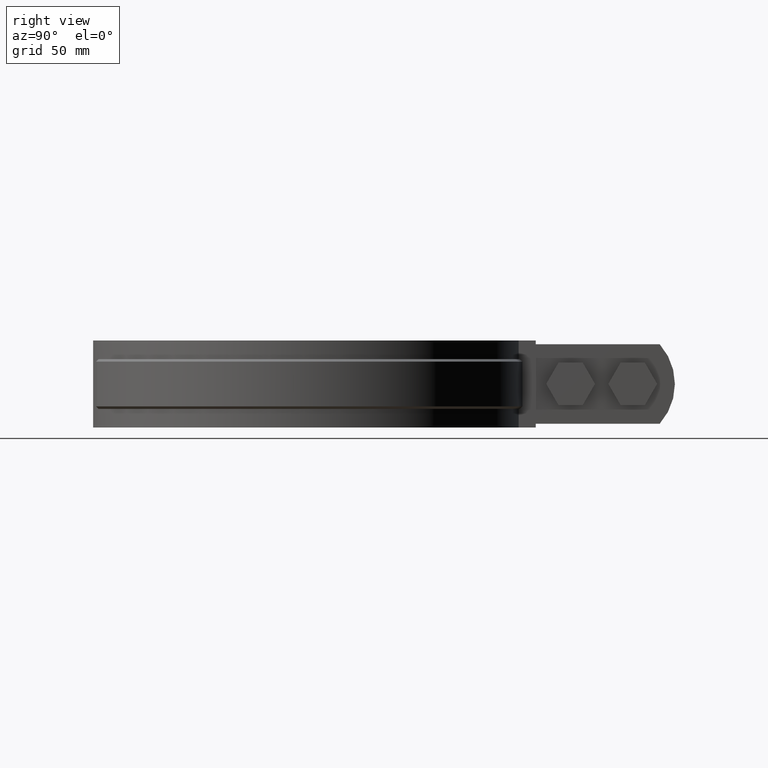
[diagram: clean part render]
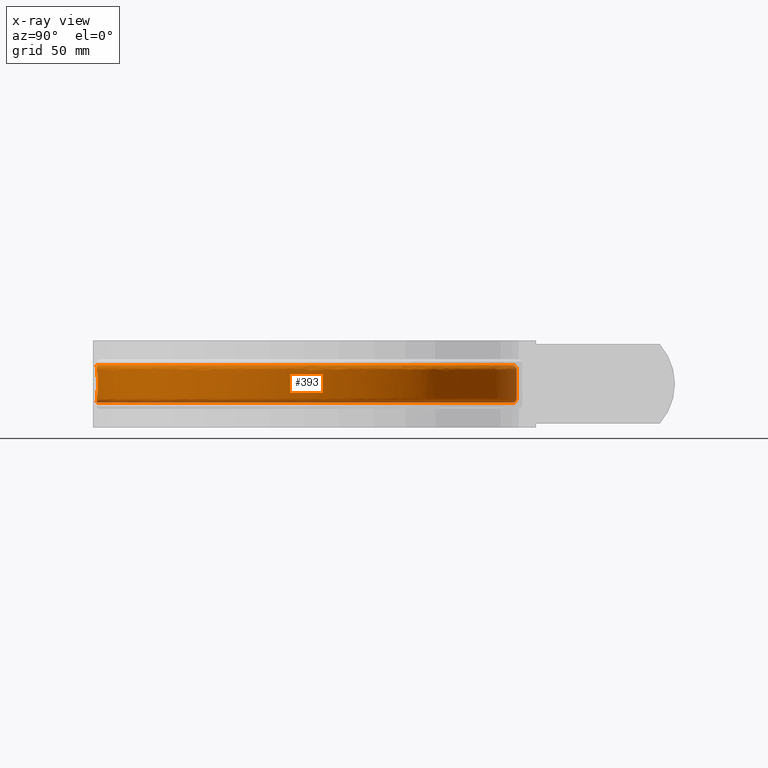
[diagram: x-ray — body ghosted, one internal face saturated and labeled with its STEP entity id]
A machine part, right view, then the same camera in x-ray: the body is ghosted and one INTERNAL B-rep face — a face not visible from any outside direction — is saturated and labeled: STEP entity #393.
In plain terms, the highlighted face is a freeform B-spline surface patch.
Its self-contained STEP definition (entity closure, byte-faithful):
#393 = ADVANCED_FACE( '', ( #644, #645 ), #646, .T. );
#644 = FACE_BOUND( '', #1352, .T. );
#645 = FACE_OUTER_BOUND( '', #1353, .T. );
#646 = B_SPLINE_SURFACE_WITH_KNOTS( '', 3, 3, ( ( #1354, #1355, #1356, #1357, #1358, #1359, #1360, #1361, #1362, #1363, #1364, #1365, #1366, #1367, #1368, #1369, #1370 ), ( #1371, #1372, #1373, #1374, #1375, #1376, #1377, #1378, #1379, #1380, #1381, #1382, #1383, #1384, #1385, #1386, #1387 ), ( #1388, #1389, #1390, #1391, #1392, #1393, #1394, #1395, #1396, #1397, #1398, #1399, #1400, #1401, #1402, #1403, #1404 ), ( #1405, #1406, #1407, #1408, #1409, #1410, #1411, #1412, #1413, #1414, #1415, #1416, #1417, #1418, #1419, #1420, #1421 ), ( #1422, #1423, #1424, #1425, #1426, #1427, #1428, #1429, #1430, #1431, #1432, #1433, #1434, #1435, #1436, #1437, #1438 ), ( #1439, #1440, #1441, #1442, #1443, #1444, #1445, #1446, #1447, #1448, #1449, #1450, #1451, #1452, #1453, #1454, #1455 ), ( #1456, #1457, #1458, #1459, #1460, #1461, #1462, #1463, #1464, #1465, #1466, #1467, #1468, #1469, #1470, #1471, #1472 ), ( #1473, #1474, #1475, #1476, #1477, #1478, #1479, #1480, #1481, #1482, #1483, #1484, #1485, #1486, #1487, #1488, #1489 ), ( #1490, #1491, #1492, #1493, #1494, #1495, #1496, #1497, #1498, #1499, #1500, #1501, #1502, #1503, #1504, #1505, #1506 ), ( #1507, #1508, #1509, #1510, #1511, #1512, #1513, #1514, #1515, #1516, #1517, #1518, #1519, #1520, #1521, #1522, #1523 ), ( #1524, #1525, #1526, #1527, #1528, #1529, #1530, #1531, #1532, #1533, #1534, #1535, #1536, #1537, #1538, #1539, #1540 ), ( #1541, #1542, #1543, #1544, #1545, #1546, #1547, #1548, #1549, #1550, #1551, #1552, #1553, #1554, #1555, #1556, #1557 ), ( #1558, #1559, #1560, #1561, #1562, #1563, #1564, #1565, #1566, #1567, #1568, #1569, #1570, #1571, #1572, #1573, #1574 ), ( #1575, #1576, #1577, #1578, #1579, #1580, #1581, #1582, #1583, #1584, #1585, #1586, #1587, #1588, #1589, #1590, #1591 ), ( #1592, #1593, #1594, #1595, #1596, #1597, #1598, #1599, #1600, #1601, #1602, #1603, #1604, #1605, #1606, #1607, #1608 ), ( #1609, #1610, #1611, #1612, #1613, #1614, #1615, #1616, #1617, #1618, #1619, #1620, #1621, #1622, #1623, #1624, #1625 ), ( #1626, #1627, #1628, #1629, #1630, #1631, #1632, #1633, #1634, #1635, #1636, #1637, #1638, #1639, #1640, #1641, #1642 ), ( #1643, #1644, #1645, #1646, #1647, #1648, #1649, #1650, #1651, #1652, #1653, #1654, #1655, #1656, #1657, #1658, #1659 ), ( #1660, #1661, #1662, #1663, #1664, #1665, #1666, #1667, #1668, #1669, #1670, #1671, #1672, #1673, #1674, #1675, #1676 ), ( #1677, #1678, #1679, #1680, #1681, #1682, #1683, #1684, #1685, #1686, #1687, #1688, #1689, #1690, #1691, #1692, #1693 ), ( #1694, #1695, #1696, #1697, #1698, #1699, #1700, #1701, #1702, #1703, #1704, #1705, #1706, #1707, #1708, #1709, #1710 ), ( #1711, #1712, #1713, #1714, #1715, #1716, #1717, #1718, #1719, #1720, #1721, #1722, #1723, #1724, #1725, #1726, #1727 ) ), .UNSPECIFIED., .F., .F., .F., ( 4, 3, 1, 1, 1, 3, 3, 1, 1, 1, 3, 4 ), ( 4, 1, 1, 1, 1, 1, 1, 1, 1, 1, 1, 1, 1, 1, 4 ), ( 0.000000000000000, 0.0909090909090909, 0.181818181818182, 0.272727272727273, 0.363636363636364, 0.454545454545455, 0.545454545454545, 0.636363636363636, 0.727272727272727, 0.818181818181818, 0.909090909090909, 1.00000000000000 ), ( 2.94662496584433, 4.00000000000000, 5.00000000000000, 6.00000000000000, 7.00000000000000, 8.00000000000000, 9.00000000000000, 10.0000000000000, 11.0000000000000, 12.0000000000000, 13.0000000000000, 14.0000000000000, 15.0000000000000, 16.0000000000000, 17.0000000000000 ), .UNSPECIFIED. );
#1352 = EDGE_LOOP( '', ( #3616, #3617, #3618, #3619, #3620, #3621 ) );
#1353 = EDGE_LOOP( '', ( #3622, #3623, #3624, #3625 ) );
#1354 = CARTESIAN_POINT( '', ( -4.57602471641353, 81.9831800035186, -25.5000000000000 ) );
#1355 = CARTESIAN_POINT( '', ( -17.2418049250747, 81.2770705509314, -25.5000000000000 ) );
#1356 = CARTESIAN_POINT( '', ( -41.6291278896178, 74.0593109140445, -25.5000000000000 ) );
#1357 = CARTESIAN_POINT( '', ( -69.4741859535277, 48.6367047225504, -25.5000000000000 ) );
#1358 = CARTESIAN_POINT( '', ( -83.5800692840575, 14.3798320596531, -25.5000000000000 ) );
#1359 = CARTESIAN_POINT( '', ( -81.7349723143618, -22.6218508091810, -25.5000000000000 ) );
#1360 = CARTESIAN_POINT( '', ( -64.2927986937553, -55.3064227440243, -25.5000000000000 ) );
#1361 = CARTESIAN_POINT( '', ( -34.5815497655964, -77.4369389947596, -25.5000000000000 ) );
#1362 = CARTESIAN_POINT( '', ( 1.72885938122409, -84.7901771772315, -25.5000000000000 ) );
#1363 = CARTESIAN_POINT( '', ( 37.7093513428348, -75.9629329155728, -25.5000000000000 ) );
#1364 = CARTESIAN_POINT( '', ( 66.4938038137999, -52.6397229913796, -25.5000000000000 ) );
#1365 = CARTESIAN_POINT( '', ( 82.5891706365113, -19.2712295764959, -25.5000000000000 ) );
#1366 = CARTESIAN_POINT( '', ( 82.9244293817026, 17.7745521645957, -25.5000000000000 ) );
#1367 = CARTESIAN_POINT( '', ( 67.4339167990031, 51.4292957787412, -25.5000000000000 ) );
#1368 = CARTESIAN_POINT( '', ( 39.0799749195161, 75.2665426224719, -25.5000000000000 ) );
#1369 = CARTESIAN_POINT( '', ( 15.1932533901102, 81.5907614197502, -25.5000000000000 ) );
#1370 = CARTESIAN_POINT( '', ( 3.15805060037765, 82.0497399992902, -25.5000000000000 ) );
#1371 = CARTESIAN_POINT( '', ( -4.55676874163730, 82.7876915389446, -24.6952621458757 ) );
#1372 = CARTESIAN_POINT( '', ( -17.3494016118810, 82.0845622621268, -24.6952621458757 ) );
#1373 = CARTESIAN_POINT( '', ( -41.9774141866419, 74.8151416427317, -24.6952621458757 ) );
#1374 = CARTESIAN_POINT( '', ( -70.1154624353322, 49.1657869398487, -24.6952621458756 ) );
#1375 = CARTESIAN_POINT( '', ( -84.3854149143833, 14.5851648958329, -24.6952621458757 ) );
#1376 = CARTESIAN_POINT( '', ( -82.5510850141731, -22.7794509528685, -24.6952621458756 ) );
#1377 = CARTESIAN_POINT( '', ( -64.9638376870383, -55.7968810795761, -24.6952621458757 ) );
#1378 = CARTESIAN_POINT( '', ( -34.9794881718170, -78.1666615359967, -24.6952621458756 ) );
#1379 = CARTESIAN_POINT( '', ( 1.67996683800768, -85.6199111498181, -24.6952621458757 ) );
#1380 = CARTESIAN_POINT( '', ( 38.0188347969361, -76.7343406896926, -24.6952621458757 ) );
#1381 = CARTESIAN_POINT( '', ( 67.1025978731571, -53.2055962127904, -24.6952621458756 ) );
#1382 = CARTESIAN_POINT( '', ( 83.3811264101812, -19.5235860637010, -24.6952621458757 ) );
#1383 = CARTESIAN_POINT( '', ( 83.7483166601280, 17.8838815309497, -24.6952621458756 ) );
#1384 = CARTESIAN_POINT( '', ( 68.1328925644475, 51.8794028749953, -24.6952621458757 ) );
#1385 = CARTESIAN_POINT( '', ( 39.5192389246450, 75.9717009922473, -24.6952621458756 ) );
#1386 = CARTESIAN_POINT( '', ( 15.4070135564367, 82.3758275494032, -24.6952621458757 ) );
#1387 = CARTESIAN_POINT( '', ( 3.25256170245026, 82.8489087333168, -24.6952621458757 ) );
#1388 = CARTESIAN_POINT( '', ( -4.53751276686108, 83.5922030743704, -23.8905242917513 ) );
#1389 = CARTESIAN_POINT( '', ( -17.4569982986872, 82.8920539733222, -23.8905242917513 ) );
#1390 = CARTESIAN_POINT( '', ( -42.3257004836661, 75.5709723714189, -23.8905242917513 ) );
#1391 = CARTESIAN_POINT( '', ( -70.7567389171368, 49.6948691571470, -23.8905242917513 ) );
#1392 = CARTESIAN_POINT( '', ( -85.1907605447092, 14.7904977320127, -23.8905242917513 ) );
#1393 = CARTESIAN_POINT( '', ( -83.3671977139844, -22.9370510965561, -23.8905242917513 ) );
#1394 = CARTESIAN_POINT( '', ( -65.6348766803212, -56.2873394151279, -23.8905242917513 ) );
#1395 = CARTESIAN_POINT( '', ( -35.3774265780377, -78.8963840772338, -23.8905242917513 ) );
#1396 = CARTESIAN_POINT( '', ( 1.63107429479129, -86.4496451224047, -23.8905242917513 ) );
#1397 = CARTESIAN_POINT( '', ( 38.3283182510373, -77.5057484638125, -23.8905242917513 ) );
#1398 = CARTESIAN_POINT( '', ( 67.7113919325142, -53.7714694342013, -23.8905242917513 ) );
#1399 = CARTESIAN_POINT( '', ( 84.1730821838511, -19.7759425509062, -23.8905242917513 ) );
#1400 = CARTESIAN_POINT( '', ( 84.5722039385533, 17.9932108973037, -23.8905242917513 ) );
#1401 = CARTESIAN_POINT( '', ( 68.8318683298919, 52.3295099712494, -23.8905242917513 ) );
#1402 = CARTESIAN_POINT( '', ( 39.9585029297738, 76.6768593620227, -23.8905242917513 ) );
#1403 = CARTESIAN_POINT( '', ( 15.6207737227632, 83.1608936790562, -23.8905242917513 ) );
#1404 = CARTESIAN_POINT( '', ( 3.34707280452288, 83.6480774673434, -23.8905242917513 ) );
#1405 = CARTESIAN_POINT( '', ( -4.51825679208485, 84.3967146097963, -23.0857864376269 ) );
#1406 = CARTESIAN_POINT( '', ( -17.5645949854935, 83.6995456845176, -23.0857864376269 ) );
#1407 = CARTESIAN_POINT( '', ( -42.6739867806903, 76.3268031001060, -23.0857864376269 ) );
#1408 = CARTESIAN_POINT( '', ( -71.3980153989413, 50.2239513744453, -23.0857864376269 ) );
#1409 = CARTESIAN_POINT( '', ( -85.9961061750350, 14.9958305681926, -23.0857864376269 ) );
#1410 = CARTESIAN_POINT( '', ( -84.1833104137958, -23.0946512402436, -23.0857864376269 ) );
#1411 = CARTESIAN_POINT( '', ( -66.3059156736042, -56.7777977506797, -23.0857864376269 ) );
#1412 = CARTESIAN_POINT( '', ( -35.7753649842584, -79.6261066184709, -23.0857864376269 ) );
#1413 = CARTESIAN_POINT( '', ( 1.58218175157488, -87.2793790949913, -23.0857864376269 ) );
#1414 = CARTESIAN_POINT( '', ( 38.6378017051385, -78.2771562379323, -23.0857864376269 ) );
#1415 = CARTESIAN_POINT( '', ( 68.3201859918714, -54.3373426556122, -23.0857864376269 ) );
#1416 = CARTESIAN_POINT( '', ( 84.9650379575210, -20.0282990381113, -23.0857864376269 ) );
#1417 = CARTESIAN_POINT( '', ( 85.3960912169787, 18.1025402636577, -23.0857864376269 ) );
#1418 = CARTESIAN_POINT( '', ( 69.5308440953362, 52.7796170675035, -23.0857864376269 ) );
#1419 = CARTESIAN_POINT( '', ( 40.3977669349026, 77.3820177317980, -23.0857864376269 ) );
#1420 = CARTESIAN_POINT( '', ( 15.8345338890897, 83.9459598087091, -23.0857864376269 ) );
#1421 = CARTESIAN_POINT( '', ( 3.44158390659549, 84.4472462013700, -23.0857864376269 ) );
#1422 = CARTESIAN_POINT( '', ( -4.51604200945773, 84.4892478724687, -22.9932271442431 ) );
#1423 = CARTESIAN_POINT( '', ( -17.5769705351836, 83.7924217208796, -22.9932271442431 ) );
#1424 = CARTESIAN_POINT( '', ( -42.7140459544729, 76.4137371964785, -22.9932271442431 ) );
#1425 = CARTESIAN_POINT( '', ( -71.4717737013689, 50.2848053232487, -22.9932271442431 ) );
#1426 = CARTESIAN_POINT( '', ( -86.0887353735879, 15.0194475288313, -22.9932271442431 ) );
#1427 = CARTESIAN_POINT( '', ( -84.2771780185430, -23.1127780847336, -22.9932271442431 ) );
#1428 = CARTESIAN_POINT( '', ( -66.3830971989083, -56.8342092600181, -22.9932271442431 ) );
#1429 = CARTESIAN_POINT( '', ( -35.8211350415526, -79.7100378048031, -22.9932271442431 ) );
#1430 = CARTESIAN_POINT( '', ( 1.57655823178063, -87.3748133905268, -22.9932271442431 ) );
#1431 = CARTESIAN_POINT( '', ( 38.6733978557095, -78.3658819740430, -22.9932271442431 ) );
#1432 = CARTESIAN_POINT( '', ( 68.3902082328552, -54.4024282300637, -22.9932271442431 ) );
#1433 = CARTESIAN_POINT( '', ( 85.0561270822918, -20.0573245624070, -22.9932271442431 ) );
#1434 = CARTESIAN_POINT( '', ( 85.4908530377731, 18.1151151025868, -22.9932271442431 ) );
#1435 = CARTESIAN_POINT( '', ( 69.6112388507344, 52.8313874602629, -22.9932271442431 ) );
#1436 = CARTESIAN_POINT( '', ( 40.4482901776148, 77.4631235976344, -22.9932271442431 ) );
#1437 = CARTESIAN_POINT( '', ( 15.8591201439147, 84.0362565007907, -22.9932271442431 ) );
#1438 = CARTESIAN_POINT( '', ( 3.45245437923441, 84.5391649460107, -22.9932271442431 ) );
#1439 = CARTESIAN_POINT( '', ( -4.51204871830164, 84.6560869360179, -22.7898759680773 ) );
#1440 = CARTESIAN_POINT( '', ( -17.5992838640512, 83.9598788112845, -22.7898759680773 ) );
#1441 = CARTESIAN_POINT( '', ( -42.7862733335518, 76.5704808669208, -22.7898759680773 ) );
#1442 = CARTESIAN_POINT( '', ( -71.6047611887935, 50.3945260392206, -22.7898759680773 ) );
#1443 = CARTESIAN_POINT( '', ( -86.2557474111789, 15.0620293149159, -22.7898759680773 ) );
#1444 = CARTESIAN_POINT( '', ( -84.4464229237948, -23.1454610970090, -22.7898759680773 ) );
#1445 = CARTESIAN_POINT( '', ( -66.5222568160355, -56.9359201812544, -22.7898759680773 ) );
#1446 = CARTESIAN_POINT( '', ( -35.9036592417916, -79.8613671768130, -22.7898759680773 ) );
#1447 = CARTESIAN_POINT( '', ( 1.56641892890483, -87.5468830662065, -22.7898759680773 ) );
#1448 = CARTESIAN_POINT( '', ( 38.7375783272037, -78.5258560017374, -22.7898759680773 ) );
#1449 = CARTESIAN_POINT( '', ( 68.5164595372616, -54.5197786398348, -22.7898759680773 ) );
#1450 = CARTESIAN_POINT( '', ( 85.2203623403749, -20.1096580817562, -22.7898759680773 ) );
#1451 = CARTESIAN_POINT( '', ( 85.6617102299323, 18.1377877533789, -22.7898759680773 ) );
#1452 = CARTESIAN_POINT( '', ( 69.7561919769672, 52.9247303685111, -22.7898759680773 ) );
#1453 = CARTESIAN_POINT( '', ( 40.5393844528855, 77.6093588682137, -22.7898759680773 ) );
#1454 = CARTESIAN_POINT( '', ( 15.9034495840826, 84.1990629891105, -22.7898759680773 ) );
#1455 = CARTESIAN_POINT( '', ( 3.47205402830153, 84.7048960229830, -22.7898759680773 ) );
#1456 = CARTESIAN_POINT( '', ( -4.50759779377145, 84.8420458484832, -22.4418734431229 ) );
#1457 = CARTESIAN_POINT( '', ( -17.6241543127425, 84.1465265768247, -22.4418734431229 ) );
#1458 = CARTESIAN_POINT( '', ( -42.8667780102024, 76.7451874486482, -22.4418734431229 ) );
#1459 = CARTESIAN_POINT( '', ( -71.7529891157961, 50.5168208098996, -22.4418734431229 ) );
#1460 = CARTESIAN_POINT( '', ( -86.4418991206068, 15.1094909972263, -22.4418734431230 ) );
#1461 = CARTESIAN_POINT( '', ( -84.6350633887517, -23.1818896005593, -22.4418734431229 ) );
#1462 = CARTESIAN_POINT( '', ( -66.6773642022169, -57.0492872302929, -22.4418734431230 ) );
#1463 = CARTESIAN_POINT( '', ( -35.9956407609997, -80.0300389785144, -22.4418734431229 ) );
#1464 = CARTESIAN_POINT( '', ( 1.55511765631417, -87.7386720218439, -22.4418734431229 ) );
#1465 = CARTESIAN_POINT( '', ( 38.8091139162120, -78.7041631414437, -22.4418734431229 ) );
#1466 = CARTESIAN_POINT( '', ( 68.6571793109481, -54.6505774714401, -22.4418734431229 ) );
#1467 = CARTESIAN_POINT( '', ( 85.4034190498281, -20.1679890513542, -22.4418734431230 ) );
#1468 = CARTESIAN_POINT( '', ( 85.8521477507676, 18.1630587024859, -22.4418734431229 ) );
#1469 = CARTESIAN_POINT( '', ( 69.9177568116003, 53.0287704256471, -22.4418734431230 ) );
#1470 = CARTESIAN_POINT( '', ( 40.6409181824617, 77.7723527816444, -22.4418734431229 ) );
#1471 = CARTESIAN_POINT( '', ( 15.9528592026002, 84.3805271909958, -22.4418734431230 ) );
#1472 = CARTESIAN_POINT( '', ( 3.49389980798697, 84.8896199729971, -22.4418734431230 ) );
#1473 = CARTESIAN_POINT( '', ( -4.50485692797881, 84.9565587813707, -22.0642686993349 ) );
#1474 = CARTESIAN_POINT( '', ( -17.6394694594279, 84.2614637033413, -22.0642686993349 ) );
#1475 = CARTESIAN_POINT( '', ( -42.9163525453091, 76.8527712304800, -22.0642686993349 ) );
#1476 = CARTESIAN_POINT( '', ( -71.8442674225570, 50.5921295578461, -22.0642686993349 ) );
#1477 = CARTESIAN_POINT( '', ( -86.5565307772778, 15.1387177568856, -22.0642686993349 ) );
#1478 = CARTESIAN_POINT( '', ( -84.7512276135103, -23.2043221622846, -22.0642686993349 ) );
#1479 = CARTESIAN_POINT( '', ( -66.7728788590229, -57.1190983143981, -22.0642686993349 ) );
#1480 = CARTESIAN_POINT( '', ( -36.0522827008580, -80.1339065611550, -22.0642686993349 ) );
#1481 = CARTESIAN_POINT( '', ( 1.54815836701439, -87.8567750775907, -22.0642686993349 ) );
#1482 = CARTESIAN_POINT( '', ( 38.8531653144192, -78.8139641359316, -22.0642686993349 ) );
#1483 = CARTESIAN_POINT( '', ( 68.7438341197254, -54.7311229942485, -22.0642686993349 ) );
#1484 = CARTESIAN_POINT( '', ( 85.5161448149249, -20.2039090850772, -22.0642686993349 ) );
#1485 = CARTESIAN_POINT( '', ( 85.9694185970722, 18.1786204761096, -22.0642686993349 ) );
#1486 = CARTESIAN_POINT( '', ( 70.0172479455291, 53.0928379764974, -22.0642686993349 ) );
#1487 = CARTESIAN_POINT( '', ( 40.7034423444212, 77.8727239379515, -22.0642686993349 ) );
#1488 = CARTESIAN_POINT( '', ( 15.9832854954533, 84.4922722947743, -22.0642686993349 ) );
#1489 = CARTESIAN_POINT( '', ( 3.50735237269512, 85.0033724197621, -22.0642686993349 ) );
#1490 = CARTESIAN_POINT( '', ( -4.50423994323229, 84.9823363050497, -21.8024714832809 ) );
#1491 = CARTESIAN_POINT( '', ( -17.6429169875488, 84.2873367154604, -21.8024714832809 ) );
#1492 = CARTESIAN_POINT( '', ( -42.9275120599628, 76.8769889621695, -21.8024714832809 ) );
#1493 = CARTESIAN_POINT( '', ( -71.8648146974767, 50.6090819926889, -21.8024714832809 ) );
#1494 = CARTESIAN_POINT( '', ( -86.5823350263673, 15.1452968695691, -21.8024714832809 ) );
#1495 = CARTESIAN_POINT( '', ( -84.7773768525427, -23.2093718617070, -21.8024714832808 ) );
#1496 = CARTESIAN_POINT( '', ( -66.7943797608462, -57.1348131933048, -21.8024714832809 ) );
#1497 = CARTESIAN_POINT( '', ( -36.0650331292080, -80.1572877549074, -21.8024714832808 ) );
#1498 = CARTESIAN_POINT( '', ( 1.54659179073177, -87.8833607586951, -21.8024714832809 ) );
#1499 = CARTESIAN_POINT( '', ( 38.8630815390040, -78.8386809750171, -21.8024714832809 ) );
#1500 = CARTESIAN_POINT( '', ( 68.7633406185010, -54.7492542574088, -21.8024714832809 ) );
#1501 = CARTESIAN_POINT( '', ( 85.5415200367951, -20.2119948924747, -21.8024714832809 ) );
#1502 = CARTESIAN_POINT( '', ( 85.9958169430167, 18.1821235213810, -21.8024714832808 ) );
#1503 = CARTESIAN_POINT( '', ( 70.0396439753577, 53.1072599528407, -21.8024714832809 ) );
#1504 = CARTESIAN_POINT( '', ( 40.7175168949962, 77.8953180659087, -21.8024714832809 ) );
#1505 = CARTESIAN_POINT( '', ( 15.9901346299983, 84.5174267641084, -21.8024714832809 ) );
#1506 = CARTESIAN_POINT( '', ( 3.51038062283739, 85.0289787536154, -21.8024714832809 ) );
#1507 = CARTESIAN_POINT( '', ( -4.50423994323229, 84.9823363050497, -21.6715728752538 ) );
#1508 = CARTESIAN_POINT( '', ( -17.6429169875488, 84.2873367154604, -21.6715728752538 ) );
#1509 = CARTESIAN_POINT( '', ( -42.9275120599628, 76.8769889621695, -21.6715728752538 ) );
#1510 = CARTESIAN_POINT( '', ( -71.8648146974767, 50.6090819926889, -21.6715728752538 ) );
#1511 = CARTESIAN_POINT( '', ( -86.5823350263673, 15.1452968695691, -21.6715728752538 ) );
#1512 = CARTESIAN_POINT( '', ( -84.7773768525427, -23.2093718617070, -21.6715728752538 ) );
#1513 = CARTESIAN_POINT( '', ( -66.7943797608462, -57.1348131933048, -21.6715728752538 ) );
#1514 = CARTESIAN_POINT( '', ( -36.0650331292080, -80.1572877549074, -21.6715728752538 ) );
#1515 = CARTESIAN_POINT( '', ( 1.54659179073177, -87.8833607586951, -21.6715728752538 ) );
#1516 = CARTESIAN_POINT( '', ( 38.8630815390040, -78.8386809750171, -21.6715728752538 ) );
#1517 = CARTESIAN_POINT( '', ( 68.7633406185010, -54.7492542574088, -21.6715728752538 ) );
#1518 = CARTESIAN_POINT( '', ( 85.5415200367951, -20.2119948924747, -21.6715728752538 ) );
#1519 = CARTESIAN_POINT( '', ( 85.9958169430167, 18.1821235213810, -21.6715728752538 ) );
#1520 = CARTESIAN_POINT( '', ( 70.0396439753577, 53.1072599528407, -21.6715728752538 ) );
#1521 = CARTESIAN_POINT( '', ( 40.7175168949962, 77.8953180659087, -21.6715728752538 ) );
#1522 = CARTESIAN_POINT( '', ( 15.9901346299983, 84.5174267641084, -21.6715728752538 ) );
#1523 = CARTESIAN_POINT( '', ( 3.51038062283739, 85.0289787536154, -21.6715728752538 ) );
#1524 = CARTESIAN_POINT( '', ( -4.50423994323229, 84.9823363050498, -17.8905242917513 ) );
#1525 = CARTESIAN_POINT( '', ( -17.6429169875488, 84.2873367154604, -17.8905242917513 ) );
#1526 = CARTESIAN_POINT( '', ( -42.9275120599628, 76.8769889621696, -17.8905242917513 ) );
#1527 = CARTESIAN_POINT( '', ( -71.8648146974767, 50.6090819926889, -17.8905242917513 ) );
#1528 = CARTESIAN_POINT( '', ( -86.5823350263673, 15.1452968695691, -17.8905242917513 ) );
#1529 = CARTESIAN_POINT( '', ( -84.7773768525427, -23.2093718617070, -17.8905242917513 ) );
#1530 = CARTESIAN_POINT( '', ( -66.7943797608462, -57.1348131933048, -17.8905242917513 ) );
#1531 = CARTESIAN_POINT( '', ( -36.0650331292080, -80.1572877549074, -17.8905242917513 ) );
#1532 = CARTESIAN_POINT( '', ( 1.54659179073177, -87.8833607586951, -17.8905242917513 ) );
#1533 = CARTESIAN_POINT( '', ( 38.8630815390040, -78.8386809750171, -17.8905242917513 ) );
#1534 = CARTESIAN_POINT( '', ( 68.7633406185010, -54.7492542574088, -17.8905242917513 ) );
#1535 = CARTESIAN_POINT( '', ( 85.5415200367951, -20.2119948924747, -17.8905242917513 ) );
#1536 = CARTESIAN_POINT( '', ( 85.9958169430167, 18.1821235213810, -17.8905242917513 ) );
#1537 = CARTESIAN_POINT( '', ( 70.0396439753577, 53.1072599528407, -17.8905242917513 ) );
#1538 = CARTESIAN_POINT( '', ( 40.7175168949962, 77.8953180659087, -17.8905242917513 ) );
#1539 = CARTESIAN_POINT( '', ( 15.9901346299983, 84.5174267641084, -17.8905242917513 ) );
#1540 = CARTESIAN_POINT( '', ( 3.51038062283739, 85.0289787536154, -17.8905242917513 ) );
#1541 = CARTESIAN_POINT( '', ( -4.50423994323229, 84.9823363050498, -14.1094757082487 ) );
#1542 = CARTESIAN_POINT( '', ( -17.6429169875488, 84.2873367154604, -14.1094757082487 ) );
#1543 = CARTESIAN_POINT( '', ( -42.9275120599628, 76.8769889621696, -14.1094757082487 ) );
#1544 = CARTESIAN_POINT( '', ( -71.8648146974767, 50.6090819926889, -14.1094757082487 ) );
#1545 = CARTESIAN_POINT( '', ( -86.5823350263673, 15.1452968695691, -14.1094757082488 ) );
#1546 = CARTESIAN_POINT( '', ( -84.7773768525427, -23.2093718617070, -14.1094757082487 ) );
#1547 = CARTESIAN_POINT( '', ( -66.7943797608462, -57.1348131933048, -14.1094757082488 ) );
#1548 = CARTESIAN_POINT( '', ( -36.0650331292080, -80.1572877549074, -14.1094757082487 ) );
#1549 = CARTESIAN_POINT( '', ( 1.54659179073177, -87.8833607586951, -14.1094757082488 ) );
#1550 = CARTESIAN_POINT( '', ( 38.8630815390040, -78.8386809750171, -14.1094757082487 ) );
#1551 = CARTESIAN_POINT( '', ( 68.7633406185010, -54.7492542574088, -14.1094757082487 ) );
#1552 = CARTESIAN_POINT( '', ( 85.5415200367951, -20.2119948924747, -14.1094757082488 ) );
#1553 = CARTESIAN_POINT( '', ( 85.9958169430167, 18.1821235213810, -14.1094757082487 ) );
#1554 = CARTESIAN_POINT( '', ( 70.0396439753577, 53.1072599528407, -14.1094757082488 ) );
#1555 = CARTESIAN_POINT( '', ( 40.7175168949962, 77.8953180659087, -14.1094757082487 ) );
#1556 = CARTESIAN_POINT( '', ( 15.9901346299983, 84.5174267641084, -14.1094757082488 ) );
#1557 = CARTESIAN_POINT( '', ( 3.51038062283739, 85.0289787536154, -14.1094757082488 ) );
#1558 = CARTESIAN_POINT( '', ( -4.50423994323229, 84.9823363050498, -10.3284271247462 ) );
#1559 = CARTESIAN_POINT( '', ( -17.6429169875488, 84.2873367154604, -10.3284271247462 ) );
#1560 = CARTESIAN_POINT( '', ( -42.9275120599628, 76.8769889621696, -10.3284271247462 ) );
#1561 = CARTESIAN_POINT( '', ( -71.8648146974767, 50.6090819926889, -10.3284271247462 ) );
#1562 = CARTESIAN_POINT( '', ( -86.5823350263673, 15.1452968695691, -10.3284271247462 ) );
#1563 = CARTESIAN_POINT( '', ( -84.7773768525427, -23.2093718617070, -10.3284271247462 ) );
#1564 = CARTESIAN_POINT( '', ( -66.7943797608462, -57.1348131933048, -10.3284271247462 ) );
#1565 = CARTESIAN_POINT( '', ( -36.0650331292080, -80.1572877549074, -10.3284271247462 ) );
#1566 = CARTESIAN_POINT( '', ( 1.54659179073177, -87.8833607586951, -10.3284271247462 ) );
#1567 = CARTESIAN_POINT( '', ( 38.8630815390040, -78.8386809750171, -10.3284271247462 ) );
#1568 = CARTESIAN_POINT( '', ( 68.7633406185010, -54.7492542574088, -10.3284271247462 ) );
#1569 = CARTESIAN_POINT( '', ( 85.5415200367951, -20.2119948924747, -10.3284271247462 ) );
#1570 = CARTESIAN_POINT( '', ( 85.9958169430167, 18.1821235213810, -10.3284271247462 ) );
#1571 = CARTESIAN_POINT( '', ( 70.0396439753577, 53.1072599528407, -10.3284271247462 ) );
#1572 = CARTESIAN_POINT( '', ( 40.7175168949962, 77.8953180659087, -10.3284271247462 ) );
#1573 = CARTESIAN_POINT( '', ( 15.9901346299983, 84.5174267641084, -10.3284271247462 ) );
#1574 = CARTESIAN_POINT( '', ( 3.51038062283739, 85.0289787536154, -10.3284271247462 ) );
#1575 = CARTESIAN_POINT( '', ( -4.50423994323229, 84.9823363050498, -10.1975285167192 ) );
#1576 = CARTESIAN_POINT( '', ( -17.6429169875488, 84.2873367154604, -10.1975285167192 ) );
#1577 = CARTESIAN_POINT( '', ( -42.9275120599628, 76.8769889621696, -10.1975285167192 ) );
#1578 = CARTESIAN_POINT( '', ( -71.8648146974767, 50.6090819926889, -10.1975285167192 ) );
#1579 = CARTESIAN_POINT( '', ( -86.5823350263673, 15.1452968695691, -10.1975285167192 ) );
#1580 = CARTESIAN_POINT( '', ( -84.7773768525427, -23.2093718617070, -10.1975285167192 ) );
#1581 = CARTESIAN_POINT( '', ( -66.7943797608462, -57.1348131933048, -10.1975285167192 ) );
#1582 = CARTESIAN_POINT( '', ( -36.0650331292080, -80.1572877549074, -10.1975285167192 ) );
#1583 = CARTESIAN_POINT( '', ( 1.54659179073177, -87.8833607586951, -10.1975285167192 ) );
#1584 = CARTESIAN_POINT( '', ( 38.8630815390040, -78.8386809750171, -10.1975285167192 ) );
#1585 = CARTESIAN_POINT( '', ( 68.7633406185010, -54.7492542574088, -10.1975285167192 ) );
#1586 = CARTESIAN_POINT( '', ( 85.5415200367951, -20.2119948924747, -10.1975285167192 ) );
#1587 = CARTESIAN_POINT( '', ( 85.9958169430167, 18.1821235213810, -10.1975285167192 ) );
#1588 = CARTESIAN_POINT( '', ( 70.0396439753577, 53.1072599528407, -10.1975285167192 ) );
#1589 = CARTESIAN_POINT( '', ( 40.7175168949962, 77.8953180659087, -10.1975285167192 ) );
#1590 = CARTESIAN_POINT( '', ( 15.9901346299983, 84.5174267641084, -10.1975285167192 ) );
#1591 = CARTESIAN_POINT( '', ( 3.51038062283739, 85.0289787536154, -10.1975285167192 ) );
#1592 = CARTESIAN_POINT( '', ( -4.50485692797881, 84.9565587813707, -9.93573130066511 ) );
#1593 = CARTESIAN_POINT( '', ( -17.6394694594279, 84.2614637033414, -9.93573130066511 ) );
#1594 = CARTESIAN_POINT( '', ( -42.9163525453092, 76.8527712304800, -9.93573130066511 ) );
#1595 = CARTESIAN_POINT( '', ( -71.8442674225570, 50.5921295578461, -9.93573130066511 ) );
#1596 = CARTESIAN_POINT( '', ( -86.5565307772778, 15.1387177568856, -9.93573130066511 ) );
#1597 = CARTESIAN_POINT( '', ( -84.7512276135103, -23.2043221622846, -9.93573130066511 ) );
#1598 = CARTESIAN_POINT( '', ( -66.7728788590229, -57.1190983143981, -9.93573130066511 ) );
#1599 = CARTESIAN_POINT( '', ( -36.0522827008580, -80.1339065611550, -9.93573130066510 ) );
#1600 = CARTESIAN_POINT( '', ( 1.54815836701438, -87.8567750775907, -9.93573130066511 ) );
#1601 = CARTESIAN_POINT( '', ( 38.8531653144192, -78.8139641359316, -9.93573130066511 ) );
#1602 = CARTESIAN_POINT( '', ( 68.7438341197254, -54.7311229942485, -9.93573130066510 ) );
#1603 = CARTESIAN_POINT( '', ( 85.5161448149250, -20.2039090850772, -9.93573130066511 ) );
#1604 = CARTESIAN_POINT( '', ( 85.9694185970722, 18.1786204761096, -9.93573130066511 ) );
#1605 = CARTESIAN_POINT( '', ( 70.0172479455291, 53.0928379764974, -9.93573130066511 ) );
#1606 = CARTESIAN_POINT( '', ( 40.7034423444212, 77.8727239379516, -9.93573130066511 ) );
#1607 = CARTESIAN_POINT( '', ( 15.9832854954533, 84.4922722947743, -9.93573130066511 ) );
#1608 = CARTESIAN_POINT( '', ( 3.50735237269512, 85.0033724197621, -9.93573130066511 ) );
#1609 = CARTESIAN_POINT( '', ( -4.50759779377145, 84.8420458484832, -9.55812655687708 ) );
#1610 = CARTESIAN_POINT( '', ( -17.6241543127425, 84.1465265768247, -9.55812655687708 ) );
#1611 = CARTESIAN_POINT( '', ( -42.8667780102024, 76.7451874486482, -9.55812655687709 ) );
#1612 = CARTESIAN_POINT( '', ( -71.7529891157962, 50.5168208098996, -9.55812655687708 ) );
#1613 = CARTESIAN_POINT( '', ( -86.4418991206068, 15.1094909972263, -9.55812655687709 ) );
#1614 = CARTESIAN_POINT( '', ( -84.6350633887517, -23.1818896005593, -9.55812655687708 ) );
#1615 = CARTESIAN_POINT( '', ( -66.6773642022169, -57.0492872302929, -9.55812655687709 ) );
#1616 = CARTESIAN_POINT( '', ( -35.9956407609997, -80.0300389785144, -9.55812655687708 ) );
#1617 = CARTESIAN_POINT( '', ( 1.55511765631417, -87.7386720218440, -9.55812655687709 ) );
#1618 = CARTESIAN_POINT( '', ( 38.8091139162120, -78.7041631414437, -9.55812655687709 ) );
#1619 = CARTESIAN_POINT( '', ( 68.6571793109481, -54.6505774714401, -9.55812655687708 ) );
#1620 = CARTESIAN_POINT( '', ( 85.4034190498281, -20.1679890513542, -9.55812655687709 ) );
#1621 = CARTESIAN_POINT( '', ( 85.8521477507676, 18.1630587024859, -9.55812655687708 ) );
#1622 = CARTESIAN_POINT( '', ( 69.9177568116003, 53.0287704256471, -9.55812655687709 ) );
#1623 = CARTESIAN_POINT( '', ( 40.6409181824618, 77.7723527816444, -9.55812655687708 ) );
#1624 = CARTESIAN_POINT( '', ( 15.9528592026002, 84.3805271909958, -9.55812655687709 ) );
#1625 = CARTESIAN_POINT( '', ( 3.49389980798697, 84.8896199729971, -9.55812655687709 ) );
#1626 = CARTESIAN_POINT( '', ( -4.51204871830164, 84.6560869360180, -9.21012403192274 ) );
#1627 = CARTESIAN_POINT( '', ( -17.5992838640512, 83.9598788112845, -9.21012403192274 ) );
#1628 = CARTESIAN_POINT( '', ( -42.7862733335518, 76.5704808669209, -9.21012403192274 ) );
#1629 = CARTESIAN_POINT( '', ( -71.6047611887935, 50.3945260392206, -9.21012403192274 ) );
#1630 = CARTESIAN_POINT( '', ( -86.2557474111789, 15.0620293149159, -9.21012403192274 ) );
#1631 = CARTESIAN_POINT( '', ( -84.4464229237948, -23.1454610970090, -9.21012403192274 ) );
#1632 = CARTESIAN_POINT( '', ( -66.5222568160355, -56.9359201812544, -9.21012403192274 ) );
#1633 = CARTESIAN_POINT( '', ( -35.9036592417916, -79.8613671768130, -9.21012403192273 ) );
#1634 = CARTESIAN_POINT( '', ( 1.56641892890483, -87.5468830662065, -9.21012403192274 ) );
#1635 = CARTESIAN_POINT( '', ( 38.7375783272037, -78.5258560017374, -9.21012403192274 ) );
#1636 = CARTESIAN_POINT( '', ( 68.5164595372616, -54.5197786398348, -9.21012403192274 ) );
#1637 = CARTESIAN_POINT( '', ( 85.2203623403749, -20.1096580817562, -9.21012403192274 ) );
#1638 = CARTESIAN_POINT( '', ( 85.6617102299323, 18.1377877533789, -9.21012403192274 ) );
#1639 = CARTESIAN_POINT( '', ( 69.7561919769672, 52.9247303685111, -9.21012403192274 ) );
#1640 = CARTESIAN_POINT( '', ( 40.5393844528856, 77.6093588682137, -9.21012403192274 ) );
#1641 = CARTESIAN_POINT( '', ( 15.9034495840826, 84.1990629891105, -9.21012403192274 ) );
#1642 = CARTESIAN_POINT( '', ( 3.47205402830153, 84.7048960229830, -9.21012403192274 ) );
#1643 = CARTESIAN_POINT( '', ( -4.51604200945773, 84.4892478724688, -9.00677285575691 ) );
#1644 = CARTESIAN_POINT( '', ( -17.5769705351836, 83.7924217208796, -9.00677285575691 ) );
#1645 = CARTESIAN_POINT( '', ( -42.7140459544729, 76.4137371964785, -9.00677285575691 ) );
#1646 = CARTESIAN_POINT( '', ( -71.4717737013689, 50.2848053232487, -9.00677285575691 ) );
#1647 = CARTESIAN_POINT( '', ( -86.0887353735879, 15.0194475288313, -9.00677285575692 ) );
#1648 = CARTESIAN_POINT( '', ( -84.2771780185430, -23.1127780847336, -9.00677285575691 ) );
#1649 = CARTESIAN_POINT( '', ( -66.3830971989083, -56.8342092600181, -9.00677285575692 ) );
#1650 = CARTESIAN_POINT( '', ( -35.8211350415526, -79.7100378048031, -9.00677285575691 ) );
#1651 = CARTESIAN_POINT( '', ( 1.57655823178063, -87.3748133905268, -9.00677285575691 ) );
#1652 = CARTESIAN_POINT( '', ( 38.6733978557095, -78.3658819740430, -9.00677285575691 ) );
#1653 = CARTESIAN_POINT( '', ( 68.3902082328552, -54.4024282300637, -9.00677285575691 ) );
#1654 = CARTESIAN_POINT( '', ( 85.0561270822918, -20.0573245624070, -9.00677285575691 ) );
#1655 = CARTESIAN_POINT( '', ( 85.4908530377731, 18.1151151025868, -9.00677285575691 ) );
#1656 = CARTESIAN_POINT( '', ( 69.6112388507344, 52.8313874602629, -9.00677285575692 ) );
#1657 = CARTESIAN_POINT( '', ( 40.4482901776148, 77.4631235976344, -9.00677285575691 ) );
#1658 = CARTESIAN_POINT( '', ( 15.8591201439147, 84.0362565007907, -9.00677285575691 ) );
#1659 = CARTESIAN_POINT( '', ( 3.45245437923441, 84.5391649460107, -9.00677285575691 ) );
#1660 = CARTESIAN_POINT( '', ( -4.51825679208485, 84.3967146097963, -8.91421356237311 ) );
#1661 = CARTESIAN_POINT( '', ( -17.5645949854935, 83.6995456845176, -8.91421356237311 ) );
#1662 = CARTESIAN_POINT( '', ( -42.6739867806903, 76.3268031001060, -8.91421356237312 ) );
#1663 = CARTESIAN_POINT( '', ( -71.3980153989413, 50.2239513744453, -8.91421356237311 ) );
#1664 = CARTESIAN_POINT( '', ( -85.9961061750350, 14.9958305681926, -8.91421356237312 ) );
#1665 = CARTESIAN_POINT( '', ( -84.1833104137958, -23.0946512402436, -8.91421356237311 ) );
#1666 = CARTESIAN_POINT( '', ( -66.3059156736042, -56.7777977506797, -8.91421356237312 ) );
#1667 = CARTESIAN_POINT( '', ( -35.7753649842584, -79.6261066184709, -8.91421356237311 ) );
#1668 = CARTESIAN_POINT( '', ( 1.58218175157488, -87.2793790949913, -8.91421356237312 ) );
#1669 = CARTESIAN_POINT( '', ( 38.6378017051385, -78.2771562379323, -8.91421356237312 ) );
#1670 = CARTESIAN_POINT( '', ( 68.3201859918714, -54.3373426556122, -8.91421356237311 ) );
#1671 = CARTESIAN_POINT( '', ( 84.9650379575210, -20.0282990381113, -8.91421356237312 ) );
#1672 = CARTESIAN_POINT( '', ( 85.3960912169787, 18.1025402636577, -8.91421356237311 ) );
#1673 = CARTESIAN_POINT( '', ( 69.5308440953362, 52.7796170675035, -8.91421356237312 ) );
#1674 = CARTESIAN_POINT( '', ( 40.3977669349026, 77.3820177317980, -8.91421356237311 ) );
#1675 = CARTESIAN_POINT( '', ( 15.8345338890897, 83.9459598087091, -8.91421356237312 ) );
#1676 = CARTESIAN_POINT( '', ( 3.44158390659549, 84.4472462013700, -8.91421356237312 ) );
#1677 = CARTESIAN_POINT( '', ( -4.53751276686108, 83.5922030743704, -8.10947570824875 ) );
#1678 = CARTESIAN_POINT( '', ( -17.4569982986872, 82.8920539733222, -8.10947570824875 ) );
#1679 = CARTESIAN_POINT( '', ( -42.3257004836661, 75.5709723714189, -8.10947570824875 ) );
#1680 = CARTESIAN_POINT( '', ( -70.7567389171368, 49.6948691571470, -8.10947570824875 ) );
#1681 = CARTESIAN_POINT( '', ( -85.1907605447092, 14.7904977320127, -8.10947570824876 ) );
#1682 = CARTESIAN_POINT( '', ( -83.3671977139844, -22.9370510965561, -8.10947570824875 ) );
#1683 = CARTESIAN_POINT( '', ( -65.6348766803212, -56.2873394151279, -8.10947570824876 ) );
#1684 = CARTESIAN_POINT( '', ( -35.3774265780377, -78.8963840772338, -8.10947570824875 ) );
#1685 = CARTESIAN_POINT( '', ( 1.63107429479128, -86.4496451224047, -8.10947570824875 ) );
#1686 = CARTESIAN_POINT( '', ( 38.3283182510373, -77.5057484638125, -8.10947570824875 ) );
#1687 = CARTESIAN_POINT( '', ( 67.7113919325142, -53.7714694342013, -8.10947570824875 ) );
#1688 = CARTESIAN_POINT( '', ( 84.1730821838511, -19.7759425509062, -8.10947570824876 ) );
#1689 = CARTESIAN_POINT( '', ( 84.5722039385533, 17.9932108973037, -8.10947570824875 ) );
#1690 = CARTESIAN_POINT( '', ( 68.8318683298919, 52.3295099712494, -8.10947570824876 ) );
#1691 = CARTESIAN_POINT( '', ( 39.9585029297738, 76.6768593620227, -8.10947570824875 ) );
#1692 = CARTESIAN_POINT( '', ( 15.6207737227632, 83.1608936790562, -8.10947570824875 ) );
#1693 = CARTESIAN_POINT( '', ( 3.34707280452288, 83.6480774673434, -8.10947570824875 ) );
#1694 = CARTESIAN_POINT( '', ( -4.55676874163730, 82.7876915389446, -7.30473785412438 ) );
#1695 = CARTESIAN_POINT( '', ( -17.3494016118810, 82.0845622621268, -7.30473785412439 ) );
#1696 = CARTESIAN_POINT( '', ( -41.9774141866419, 74.8151416427317, -7.30473785412439 ) );
#1697 = CARTESIAN_POINT( '', ( -70.1154624353322, 49.1657869398487, -7.30473785412438 ) );
#1698 = CARTESIAN_POINT( '', ( -84.3854149143834, 14.5851648958329, -7.30473785412439 ) );
#1699 = CARTESIAN_POINT( '', ( -82.5510850141731, -22.7794509528685, -7.30473785412438 ) );
#1700 = CARTESIAN_POINT( '', ( -64.9638376870383, -55.7968810795761, -7.30473785412439 ) );
#1701 = CARTESIAN_POINT( '', ( -34.9794881718170, -78.1666615359967, -7.30473785412438 ) );
#1702 = CARTESIAN_POINT( '', ( 1.67996683800768, -85.6199111498181, -7.30473785412439 ) );
#1703 = CARTESIAN_POINT( '', ( 38.0188347969361, -76.7343406896926, -7.30473785412439 ) );
#1704 = CARTESIAN_POINT( '', ( 67.1025978731571, -53.2055962127904, -7.30473785412438 ) );
#1705 = CARTESIAN_POINT( '', ( 83.3811264101812, -19.5235860637010, -7.30473785412439 ) );
#1706 = CARTESIAN_POINT( '', ( 83.7483166601280, 17.8838815309497, -7.30473785412438 ) );
#1707 = CARTESIAN_POINT( '', ( 68.1328925644475, 51.8794028749953, -7.30473785412439 ) );
#1708 = CARTESIAN_POINT( '', ( 39.5192389246450, 75.9717009922473, -7.30473785412438 ) );
#1709 = CARTESIAN_POINT( '', ( 15.4070135564367, 82.3758275494032, -7.30473785412439 ) );
#1710 = CARTESIAN_POINT( '', ( 3.25256170245027, 82.8489087333168, -7.30473785412439 ) );
#1711 = CARTESIAN_POINT( '', ( -4.57602471641353, 81.9831800035186, -6.50000000000002 ) );
#1712 = CARTESIAN_POINT( '', ( -17.2418049250747, 81.2770705509314, -6.50000000000002 ) );
#1713 = CARTESIAN_POINT( '', ( -41.6291278896178, 74.0593109140445, -6.50000000000002 ) );
#1714 = CARTESIAN_POINT( '', ( -69.4741859535277, 48.6367047225504, -6.50000000000002 ) );
#1715 = CARTESIAN_POINT( '', ( -83.5800692840575, 14.3798320596531, -6.50000000000002 ) );
#1716 = CARTESIAN_POINT( '', ( -81.7349723143618, -22.6218508091810, -6.50000000000001 ) );
#1717 = CARTESIAN_POINT( '', ( -64.2927986937553, -55.3064227440243, -6.50000000000002 ) );
#1718 = CARTESIAN_POINT( '', ( -34.5815497655964, -77.4369389947596, -6.50000000000001 ) );
#1719 = CARTESIAN_POINT( '', ( 1.72885938122409, -84.7901771772315, -6.50000000000002 ) );
#1720 = CARTESIAN_POINT( '', ( 37.7093513428348, -75.9629329155728, -6.50000000000002 ) );
#1721 = CARTESIAN_POINT( '', ( 66.4938038137999, -52.6397229913796, -6.50000000000002 ) );
#1722 = CARTESIAN_POINT( '', ( 82.5891706365113, -19.2712295764959, -6.50000000000002 ) );
#1723 = CARTESIAN_POINT( '', ( 82.9244293817026, 17.7745521645957, -6.50000000000002 ) );
#1724 = CARTESIAN_POINT( '', ( 67.4339167990031, 51.4292957787412, -6.50000000000002 ) );
#1725 = CARTESIAN_POINT( '', ( 39.0799749195161, 75.2665426224719, -6.50000000000002 ) );
#1726 = CARTESIAN_POINT( '', ( 15.1932533901103, 81.5907614197502, -6.50000000000002 ) );
#1727 = CARTESIAN_POINT( '', ( 3.15805060037765, 82.0497399992902, -6.50000000000002 ) );
#3616 = ORIENTED_EDGE( '', *, *, #4801, .F. );
#3617 = ORIENTED_EDGE( '', *, *, #4798, .F. );
#3618 = ORIENTED_EDGE( '', *, *, #4781, .F. );
#3619 = ORIENTED_EDGE( '', *, *, #4764, .F. );
#3620 = ORIENTED_EDGE( '', *, *, #4761, .F. );
#3621 = ORIENTED_EDGE( '', *, *, #4770, .F. );
#3622 = ORIENTED_EDGE( '', *, *, #4790, .F. );
#3623 = ORIENTED_EDGE( '', *, *, #4776, .F. );
#3624 = ORIENTED_EDGE( '', *, *, #4772, .F. );
#3625 = ORIENTED_EDGE( '', *, *, #4802, .F. );
#4761 = EDGE_CURVE( '', #5266, #5268, #5269, .T. );
#4764 = EDGE_CURVE( '', #5268, #5272, #5273, .T. );
#4770 = EDGE_CURVE( '', #5281, #5266, #5283, .T. );
#4772 = EDGE_CURVE( '', #5285, #5286, #5287, .T. );
#4776 = EDGE_CURVE( '', #5286, #5293, #5294, .T. );
#4781 = EDGE_CURVE( '', #5272, #5302, #5303, .T. );
#4790 = EDGE_CURVE( '', #5293, #5318, #5319, .T. );
#4798 = EDGE_CURVE( '', #5302, #5330, #5331, .T. );
#4801 = EDGE_CURVE( '', #5330, #5281, #5334, .T. );
#4802 = EDGE_CURVE( '', #5318, #5285, #5335, .T. );
#5266 = VERTEX_POINT( '', #7202 );
#5268 = VERTEX_POINT( '', #7205 );
#5269 = B_SPLINE_CURVE_WITH_KNOTS( '', 3, ( #7206, #7207, #7208, #7209, #7210, #7211, #7212, #7213, #7214, #7215, #7216, #7217, #7218, #7219, #7220, #7221, #7222, #7223, #7224, #7225, #7226 ), .UNSPECIFIED., .F., .F., ( 4, 2, 2, 2, 2, 1, 2, 2, 2, 2, 4 ), ( 3.46944695195361E-018, 0.00137795773065446, 0.00275591546130892, 0.00413387319196337, 0.00482285205729059, 0.00551183092261782, 0.00620080978794504, 0.00688978865327227, 0.00826774638392672, 0.00964570411458117, 0.0110236618452356 ), .UNSPECIFIED. );
#5272 = VERTEX_POINT( '', #7258 );
#5273 = B_SPLINE_CURVE_WITH_KNOTS( '', 3, ( #7259, #7260, #7261, #7262, #7263 ), .UNSPECIFIED., .F., .F., ( 4, 1, 4 ), ( 0.000000000000000, 0.00954935976723376, 0.0160413038144210 ), .UNSPECIFIED. );
#5281 = VERTEX_POINT( '', #7412 );
#5283 = B_SPLINE_CURVE_WITH_KNOTS( '', 3, ( #7415, #7416, #7417, #7418, #7419, #7420, #7421, #7422, #7423, #7424, #7425, #7426, #7427, #7428, #7429, #7430, #7431, #7432, #7433, #7434, #7435, #7436, #7437, #7438 ), .UNSPECIFIED., .F., .F., ( 4, 2, 2, 2, 2, 2, 2, 2, 2, 2, 2, 4 ), ( 1.73472347597681E-018, 0.00137308046350817, 0.00274616092701634, 0.00343270115877042, 0.00411924139052451, 0.00480578162227860, 0.00549232185403268, 0.00686540231754085, 0.00823848278104901, 0.00892502301280309, 0.00961156324455718, 0.0109846437080653 ), .UNSPECIFIED. );
#5285 = VERTEX_POINT( '', #7443 );
#5286 = VERTEX_POINT( '', #7444 );
#5287 = B_SPLINE_CURVE_WITH_KNOTS( '', 3, ( #7445, #7446, #7447, #7448, #7449, #7450, #7451, #7452, #7453, #7454, #7455, #7456, #7457, #7458, #7459, #7460, #7461, #7462, #7463, #7464, #7465, #7466, #7467, #7468, #7469, #7470, #7471, #7472, #7473, #7474, #7475, #7476, #7477, #7478, #7479, #7480, #7481, #7482, #7483, #7484, #7485, #7486, #7487, #7488, #7489, #7490, #7491, #7492, #7493, #7494, #7495, #7496, #7497, #7498, #7499, #7500, #7501, #7502, #7503, #7504, #7505, #7506, #7507, #7508, #7509, #7510, #7511, #7512, #7513, #7514, #7515, #7516, #7517, #7518, #7519, #7520, #7521, #7522, #7523, #7524, #7525, #7526, #7527, #7528, #7529, #7530, #7531, #7532, #7533, #7534, #7535, #7536, #7537, #7538, #7539, #7540, #7541, #7542, #7543, #7544, #7545, #7546, #7547, #7548, #7549, #7550, #7551, #7552, #7553, #7554, #7555, #7556, #7557, #7558, #7559, #7560, #7561, #7562, #7563, #7564, #7565, #7566, #7567, #7568, #7569, #7570, #7571, #7572, #7573, #7574, #7575, #7576, #7577, #7578, #7579, #7580, #7581, #7582, #7583, #7584, #7585, #7586, #7587, #7588, #7589, #7590, #7591, #7592, #7593, #7594, #7595, #7596, #7597, #7598, #7599, #7600 ), .UNSPECIFIED., .F., .F., ( 4, 2, 2, 2, 2, 2, 2, 2, 1, 2, 2, 2, 2, 2, 2, 2, 2, 2, 2, 2, 2, 2, 2, 2, 2, 2, 2, 2, 2, 2, 2, 2, 2, 2, 2, 2, 2, 2, 2, 2, 2, 2, 2, 2, 2, 2, 2, 2, 2, 2, 2, 2, 2, 1, 2, 2, 2, 2, 2, 2, 2, 2, 2, 2, 2, 2, 2, 2, 2, 2, 2, 2, 2, 2, 2, 2, 2, 2, 4 ), ( 1.22221087096922E-016, 0.00801741658000642, 0.0160348331600127, 0.0200435414500159, 0.0240522497400190, 0.0320696663200253, 0.0481044994800378, 0.0521132077700410, 0.0561219160600441, 0.0601306243500472, 0.0641393326400503, 0.0721567492200566, 0.0761654575100597, 0.0801741658000629, 0.0962089989600753, 0.104226415540082, 0.108235123830085, 0.112243832120088, 0.116252540410091, 0.120261248700094, 0.128278665280100, 0.132287373570103, 0.136296081860106, 0.144313498440113, 0.160348331600125, 0.164357039890128, 0.168365748180131, 0.176383164760138, 0.184400581340144, 0.188409289630147, 0.192417997920150, 0.208452831080163, 0.216470247660169, 0.220478955950172, 0.224487664240175, 0.232505080820182, 0.240522497400188, 0.244531205690191, 0.248539913980194, 0.256557330560200, 0.272592163720213, 0.276600872010216, 0.280609580300219, 0.288626996880225, 0.296644413460232, 0.300653121750235, 0.304661830040238, 0.320696663200250, 0.328714079780257, 0.332722788070260, 0.336731496360263, 0.344748912940269, 0.348757621230272, 0.352766329520275, 0.356775037810278, 0.360783746100281, 0.368801162680288, 0.384835995840300, 0.388844704130303, 0.392853412420306, 0.400870829000312, 0.404879537290315, 0.408888245580319, 0.412896953870322, 0.416905662160325, 0.424923078740331, 0.428931787030334, 0.432940495320337, 0.440957911900343, 0.448975328480349, 0.456992745060356, 0.461001453350359, 0.465010161640362, 0.473027578220368, 0.481044994800374, 0.485053703090377, 0.489062411380380, 0.497079827960387, 0.513114661120399 ), .UNSPECIFIED. );
#5293 = VERTEX_POINT( '', #7608 );
#5294 = B_SPLINE_CURVE_WITH_KNOTS( '', 3, ( #7609, #7610, #7611, #7612, #7613, #7614, #7615, #7616, #7617, #7618, #7619, #7620, #7621, #7622, #7623, #7624, #7625, #7626, #7627, #7628, #7629, #7630, #7631, #7632, #7633, #7634, #7635, #7636, #7637, #7638, #7639, #7640, #7641, #7642, #7643, #7644, #7645, #7646, #7647, #7648, #7649, #7650 ), .UNSPECIFIED., .F., .F., ( 4, 2, 2, 2, 2, 2, 2, 2, 2, 1, 1, 1, 1, 2, 2, 2, 2, 2, 2, 2, 2, 2, 4 ), ( 2.28167249642050E-017, 0.000559601340849991, 0.00111920268169996, 0.00167880402254993, 0.00195860469297492, 0.00223840536339990, 0.00279800670424988, 0.00335760804509987, 0.00363740871552486, 0.00391720938594985, 0.00447681072679984, 0.00895362145359976, 0.0134304321803997, 0.0145496348620997, 0.0148294355325246, 0.0151092362029496, 0.0153890368733746, 0.0156688375437996, 0.0159486382142246, 0.0162284388846496, 0.0167880402254996, 0.0173476415663497, 0.0179072429071997 ), .UNSPECIFIED. );
#5302 = VERTEX_POINT( '', #7660 );
#5303 = B_SPLINE_CURVE_WITH_KNOTS( '', 3, ( #7661, #7662, #7663, #7664, #7665, #7666, #7667, #7668, #7669, #7670, #7671, #7672, #7673, #7674, #7675, #7676, #7677, #7678, #7679, #7680, #7681, #7682, #7683, #7684 ), .UNSPECIFIED., .F., .F., ( 4, 2, 2, 2, 2, 2, 2, 2, 2, 2, 2, 4 ), ( 1.39857877853494E-017, 0.00137307707087662, 0.00274615414175323, 0.00343269267719154, 0.00411923121262984, 0.00480576974806815, 0.00549230828350646, 0.00686538535438307, 0.00823846242525969, 0.00892500096069800, 0.00961153949613631, 0.0109846165670129 ), .UNSPECIFIED. );
#5318 = VERTEX_POINT( '', #7806 );
#5319 = B_SPLINE_CURVE_WITH_KNOTS( '', 3, ( #7807, #7808, #7809, #7810, #7811, #7812, #7813, #7814, #7815, #7816, #7817, #7818, #7819, #7820, #7821, #7822, #7823, #7824, #7825, #7826, #7827, #7828, #7829, #7830, #7831, #7832, #7833, #7834, #7835, #7836, #7837, #7838, #7839, #7840, #7841, #7842, #7843, #7844, #7845, #7846, #7847, #7848, #7849, #7850, #7851, #7852, #7853, #7854, #7855, #7856, #7857, #7858, #7859, #7860, #7861, #7862, #7863, #7864, #7865, #7866, #7867, #7868, #7869, #7870, #7871, #7872, #7873, #7874, #7875, #7876, #7877, #7878, #7879, #7880, #7881, #7882, #7883, #7884, #7885, #7886, #7887, #7888, #7889, #7890, #7891, #7892, #7893, #7894, #7895, #7896, #7897, #7898, #7899, #7900, #7901, #7902, #7903, #7904, #7905, #7906, #7907, #7908, #7909, #7910, #7911, #7912, #7913, #7914, #7915, #7916, #7917, #7918, #7919, #7920, #7921, #7922, #7923, #7924, #7925, #7926, #7927, #7928, #7929, #7930, #7931, #7932, #7933, #7934, #7935, #7936, #7937, #7938, #7939, #7940, #7941, #7942, #7943, #7944, #7945, #7946, #7947, #7948, #7949, #7950, #7951, #7952, #7953, #7954, #7955, #7956, #7957, #7958, #7959, #7960, #7961, #7962, #7963 ), .UNSPECIFIED., .F., .F., ( 4, 2, 2, 2, 2, 2, 2, 2, 1, 2, 2, 2, 2, 2, 2, 2, 2, 1, 2, 2, 2, 2, 2, 2, 2, 2, 2, 2, 2, 2, 2, 2, 2, 2, 2, 2, 2, 2, 2, 2, 2, 2, 2, 2, 2, 1, 2, 2, 2, 2, 2, 2, 2, 2, 2, 1, 2, 2, 2, 2, 2, 2, 2, 2, 1, 2, 2, 2, 2, 2, 2, 2, 2, 2, 2, 2, 2, 2, 2, 2, 4 ), ( 1.17052065317073E-016, 0.00801742431790648, 0.0160348486358128, 0.0200435607947660, 0.0240522729537192, 0.0320696972716255, 0.0481045459074382, 0.0521132580663914, 0.0561219702253445, 0.0601306823842977, 0.0641393945432509, 0.0721568188611572, 0.0761655310201104, 0.0801742431790635, 0.0962090918148762, 0.104226516132783, 0.108235228291736, 0.112243940450689, 0.116252652609642, 0.120261364768595, 0.128278789086501, 0.132287501245455, 0.136296213404408, 0.144313637722314, 0.160348486358127, 0.164357198517080, 0.168365910676033, 0.176383334993939, 0.184400759311846, 0.188409471470799, 0.192418183629752, 0.200435607947658, 0.204444320106611, 0.208453032265564, 0.216470456583471, 0.224487880901377, 0.232505305219283, 0.240522729537189, 0.244531441696143, 0.248540153855096, 0.256557578173002, 0.264575002490908, 0.272592426808814, 0.288627275444627, 0.292635987603580, 0.296644699762533, 0.300653411921486, 0.304662124080439, 0.312679548398346, 0.316688260557299, 0.320696972716252, 0.328714397034158, 0.336731821352065, 0.344749245669971, 0.348757957828924, 0.352766669987877, 0.356775382146830, 0.360784094305784, 0.368801518623690, 0.372810230782643, 0.376818942941596, 0.384836367259502, 0.400871215895315, 0.404879928054268, 0.408888640213221, 0.412897352372174, 0.416906064531127, 0.424923488849034, 0.428932201007987, 0.432940913166940, 0.440958337484846, 0.448975761802753, 0.456993186120659, 0.461001898279612, 0.465010610438565, 0.473028034756471, 0.481045459074378, 0.485054171233331, 0.489062883392284, 0.497080307710190, 0.513115156346002 ), .UNSPECIFIED. );
#5330 = VERTEX_POINT( '', #7978 );
#5331 = B_SPLINE_CURVE_WITH_KNOTS( '', 3, ( #7979, #7980, #7981, #7982, #7983, #7984, #7985, #7986, #7987, #7988, #7989, #7990, #7991, #7992, #7993, #7994, #7995, #7996, #7997, #7998, #7999 ), .UNSPECIFIED., .F., .F., ( 4, 2, 2, 2, 2, 1, 2, 2, 2, 2, 4 ), ( 3.46944695195361E-018, 0.00137796493933820, 0.00275592987867640, 0.00413389481801460, 0.00482287728768369, 0.00551185975735278, 0.00620084222702187, 0.00688982469669096, 0.00826778963602915, 0.00964575457536734, 0.0110237195147055 ), .UNSPECIFIED. );
#5334 = B_SPLINE_CURVE_WITH_KNOTS( '', 3, ( #8030, #8031, #8032, #8033, #8034 ), .UNSPECIFIED., .F., .F., ( 4, 1, 4 ), ( 0.000000000000000, 0.00648565492910397, 0.0160257636845053 ), .UNSPECIFIED. );
#5335 = B_SPLINE_CURVE_WITH_KNOTS( '', 3, ( #8035, #8036, #8037, #8038, #8039, #8040, #8041, #8042, #8043, #8044, #8045, #8046, #8047, #8048, #8049, #8050, #8051, #8052, #8053, #8054, #8055, #8056, #8057, #8058, #8059, #8060, #8061, #8062, #8063, #8064, #8065, #8066, #8067, #8068, #8069, #8070, #8071, #8072, #8073, #8074, #8075, #8076 ), .UNSPECIFIED., .F., .F., ( 4, 2, 2, 2, 2, 2, 2, 2, 2, 1, 1, 1, 1, 2, 2, 2, 2, 2, 2, 2, 2, 2, 4 ), ( 1.73472347597681E-018, 0.000559583588360844, 0.00111916717672169, 0.00167875076508253, 0.00195854255926294, 0.00223833435344335, 0.00279791794180419, 0.00335750153016502, 0.00363729332434544, 0.00391708511852587, 0.00447666870688671, 0.00895333741377342, 0.0134300061206601, 0.0145491732973818, 0.0148289650915622, 0.0151087568857426, 0.0153885486799230, 0.0156683404741035, 0.0159481322682839, 0.0162279240624643, 0.0167875076508251, 0.0173470912391859, 0.0179066748275468 ), .UNSPECIFIED. );
#7202 = CARTESIAN_POINT( '', ( -15.0000000000000, -83.7603791360180, -16.0000000000000 ) );
#7205 = CARTESIAN_POINT( '', ( -8.00000000000000, -84.2138108647779, -9.00000000000001 ) );
#7206 = CARTESIAN_POINT( '', ( -15.0000000000000, -83.7603791360180, -16.0000000000000 ) );
#7207 = CARTESIAN_POINT( '', ( -15.0000000000000, -83.7603791360180, -15.5356551190050 ) );
#7208 = CARTESIAN_POINT( '', ( -14.9542511312601, -83.7686188808297, -15.0782054743363 ) );
#7209 = CARTESIAN_POINT( '', ( -14.7739795116928, -83.8006428771888, -14.1766745986133 ) );
#7210 = CARTESIAN_POINT( '', ( -14.6374646590964, -83.8247691467849, -13.7298560515241 ) );
#7211 = CARTESIAN_POINT( '', ( -14.2853445936902, -83.8855911540298, -12.8848862001324 ) );
#7212 = CARTESIAN_POINT( '', ( -14.0694774623713, -83.9223421040832, -12.4824462832834 ) );
#7213 = CARTESIAN_POINT( '', ( -13.6849519289812, -83.9857299467049, -11.9092474079666 ) );
#7214 = CARTESIAN_POINT( '', ( -13.5465460739126, -84.0082429762208, -11.7235291755418 ) );
#7215 = CARTESIAN_POINT( '', ( -13.2553698309462, -84.0547870994735, -11.3703710729197 ) );
#7216 = CARTESIAN_POINT( '', ( -12.9484566162558, -84.1030777099310, -11.0333241059649 ) );
#7217 = CARTESIAN_POINT( '', ( -12.6105623505460, -84.1542682379109, -10.7279118549247 ) );
#7218 = CARTESIAN_POINT( '', ( -12.2569689306573, -84.2066566340665, -10.4384881442962 ) );
#7219 = CARTESIAN_POINT( '', ( -12.0712310513132, -84.2375143602519, -10.3010638093657 ) );
#7220 = CARTESIAN_POINT( '', ( -11.4974896662874, -84.2888332414986, -9.91898446420263 ) );
#7221 = CARTESIAN_POINT( '', ( -11.0960484091604, -84.2783237956819, -9.70546164477344 ) );
#7222 = CARTESIAN_POINT( '', ( -10.2557648353593, -84.2335134616313, -9.35784267990892 ) );
#7223 = CARTESIAN_POINT( '', ( -9.81219768421602, -84.1980629781665, -9.22319500846702 ) );
#7224 = CARTESIAN_POINT( '', ( -8.91507013320081, -84.1653388503615, -9.04501667929621 ) );
#7225 = CARTESIAN_POINT( '', ( -8.46054695578455, -84.1697373402748, -9.00000000000001 ) );
#7226 = CARTESIAN_POINT( '', ( -8.00000000000000, -84.2138108647779, -9.00000000000001 ) );
#7258 = CARTESIAN_POINT( '', ( 7.99999999999999, -84.2159928527929, -9.00000000000001 ) );
#7259 = CARTESIAN_POINT( '', ( -8.00000000000007, -84.2138108647779, -9.00000000000000 ) );
#7260 = CARTESIAN_POINT( '', ( -4.83432413036910, -84.5167604147786, -9.00000000000000 ) );
#7261 = CARTESIAN_POINT( '', ( 0.511498775221431, -84.7264426349142, -9.00000000000001 ) );
#7262 = CARTESIAN_POINT( '', ( 5.84803834555689, -84.4219328736180, -9.00000000000001 ) );
#7263 = CARTESIAN_POINT( '', ( 8.00000000000002, -84.2159928527929, -9.00000000000001 ) );
#7412 = CARTESIAN_POINT( '', ( -8.00000000000001, -84.2138108647779, -23.0000000000000 ) );
#7415 = CARTESIAN_POINT( '', ( -8.00000000000000, -84.2138108647779, -23.0000000000000 ) );
#7416 = CARTESIAN_POINT( '', ( -8.46182431657363, -84.1696150991193, -23.0000000000000 ) );
#7417 = CARTESIAN_POINT( '', ( -8.91758029407800, -84.1653259200649, -22.9547357391742 ) );
#7418 = CARTESIAN_POINT( '', ( -9.81708829279879, -84.1983467269211, -22.7755806344550 ) );
#7419 = CARTESIAN_POINT( '', ( -10.2616477988972, -84.2339795236056, -22.6403441754437 ) );
#7420 = CARTESIAN_POINT( '', ( -10.8953160058367, -84.2675408142104, -22.3772604314076 ) );
#7421 = CARTESIAN_POINT( '', ( -11.1020811919439, -84.2755073026590, -22.2793138118263 ) );
#7422 = CARTESIAN_POINT( '', ( -11.5067941447242, -84.2772345464019, -22.0625971740940 ) );
#7423 = CARTESIAN_POINT( '', ( -11.7060476605336, -84.2708737370623, -21.9429146723586 ) );
#7424 = CARTESIAN_POINT( '', ( -12.0886049615570, -84.2351993455541, -21.6865045092229 ) );
#7425 = CARTESIAN_POINT( '', ( -12.2712583733365, -84.2045665470517, -21.5505090257000 ) );
#7426 = CARTESIAN_POINT( '', ( -12.6227868037666, -84.1524279073574, -21.2613344983089 ) );
#7427 = CARTESIAN_POINT( '', ( -12.7912915191137, -84.1268773708256, -21.1083811952993 ) );
#7428 = CARTESIAN_POINT( '', ( -13.2749107553202, -84.0521958442440, -20.6242240380285 ) );
#7429 = CARTESIAN_POINT( '', ( -13.5693729419066, -84.0048110699231, -20.2649777183148 ) );
#7430 = CARTESIAN_POINT( '', ( -14.0756372131876, -83.9212973352200, -19.5063631240207 ) );
#7431 = CARTESIAN_POINT( '', ( -14.2908949911396, -83.8846445879150, -19.1043191169857 ) );
#7432 = CARTESIAN_POINT( '', ( -14.5552929900199, -83.8389563489781, -18.4660034585141 ) );
#7433 = CARTESIAN_POINT( '', ( -14.6332390029590, -83.8253459688917, -18.2477888635557 ) );
#7434 = CARTESIAN_POINT( '', ( -14.7659385101889, -83.8020393199704, -17.8095553381545 ) );
#7435 = CARTESIAN_POINT( '', ( -14.8212204284154, -83.7922516585442, -17.5883285715421 ) );
#7436 = CARTESIAN_POINT( '', ( -14.9544125491432, -83.7685885630222, -16.9184166990839 ) );
#7437 = CARTESIAN_POINT( '', ( -15.0000000000000, -83.7603791360180, -16.4635623856747 ) );
#7438 = CARTESIAN_POINT( '', ( -15.0000000000000, -83.7603791360180, -16.0000000000000 ) );
#7443 = CARTESIAN_POINT( '', ( -8.73988439306358, 83.5440866895790, -23.6035860054662 ) );
#7444 = CARTESIAN_POINT( '', ( 8.73988439306359, 83.5440866895789, -23.6037987605288 ) );
#7445 = CARTESIAN_POINT( '', ( -8.73988439306370, 83.5440866895790, -23.6035860054661 ) );
#7446 = CARTESIAN_POINT( '', ( -11.3986067805206, 83.2659470004593, -23.6018961835782 ) );
#7447 = CARTESIAN_POINT( '', ( -14.0447301268741, 82.8603805784688, -23.5991417775013 ) );
#7448 = CARTESIAN_POINT( '', ( -19.2670205439977, 81.8039059782758, -23.5951383196621 ) );
#7449 = CARTESIAN_POINT( '', ( -21.8471108900980, 81.1529415429384, -23.5938854643458 ) );
#7450 = CARTESIAN_POINT( '', ( -25.6706736400160, 79.9924406347046, -23.5939933911335 ) );
#7451 = CARTESIAN_POINT( '', ( -26.9374193804880, 79.5748797509560, -23.5943417722640 ) );
#7452 = CARTESIAN_POINT( '', ( -29.4552023486853, 78.6776785680501, -23.5955792491408 ) );
#7453 = CARTESIAN_POINT( '', ( -30.6991718237589, 78.2005331087631, -23.5964644615407 ) );
#7454 = CARTESIAN_POINT( '', ( -34.3830766374817, 76.6867273886347, -23.5995383968443 ) );
#7455 = CARTESIAN_POINT( '', ( -36.7769619588844, 75.5672238895512, -23.6022104326301 ) );
#7456 = CARTESIAN_POINT( '', ( -43.7764059120573, 71.8848197787124, -23.6066543012742 ) );
#7457 = CARTESIAN_POINT( '', ( -48.2014097971202, 69.0009706274131, -23.6007636742494 ) );
#7458 = CARTESIAN_POINT( '', ( -53.4194386869691, 64.8393818311167, -23.5974156745000 ) );
#7459 = CARTESIAN_POINT( '', ( -54.4445314401424, 63.9810171642992, -23.5969388061660 ) );
#7460 = CARTESIAN_POINT( '', ( -56.4476149046602, 62.2209316282727, -23.5965137681581 ) );
#7461 = CARTESIAN_POINT( '', ( -58.4067507403108, 60.4149999546089, -23.5966150679412 ) );
#7462 = CARTESIAN_POINT( '', ( -60.2782364010041, 58.5176316688587, -23.5977369577330 ) );
#7463 = CARTESIAN_POINT( '', ( -62.1057211823608, 56.5743616505429, -23.5992023943970 ) );
#7464 = CARTESIAN_POINT( '', ( -62.9985914397130, 55.5784097149548, -23.6001082322098 ) );
#7465 = CARTESIAN_POINT( '', ( -65.6000425910405, 52.5334465971796, -23.6028506929112 ) );
#7466 = CARTESIAN_POINT( '', ( -67.2322646084194, 50.4274255312459, -23.6047773649608 ) );
#7467 = CARTESIAN_POINT( '', ( -69.5283152085420, 47.1549472142966, -23.6046275381658 ) );
#7468 = CARTESIAN_POINT( '', ( -70.2682419365349, 46.0451812362800, -23.6040637309196 ) );
#7469 = CARTESIAN_POINT( '', ( -71.6968665890580, 43.7874852126050, -23.6025042637016 ) );
#7470 = CARTESIAN_POINT( '', ( -72.3834216115470, 42.6427634473312, -23.6015117023715 ) );
#7471 = CARTESIAN_POINT( '', ( -75.6642310056855, 36.8668431553140, -23.5966734727305 ) );
#7472 = CARTESIAN_POINT( '', ( -77.8225075308907, 32.0552394348227, -23.5946489119553 ) );
#7473 = CARTESIAN_POINT( '', ( -80.3736605247788, 24.5569736989811, -23.5987012371123 ) );
#7474 = CARTESIAN_POINT( '', ( -81.1089124171461, 22.0104325703795, -23.6009474163052 ) );
#7475 = CARTESIAN_POINT( '', ( -82.0336912269104, 18.1177318543134, -23.6035535783963 ) );
#7476 = CARTESIAN_POINT( '', ( -82.3118605325336, 16.8088099278378, -23.6042732938812 ) );
#7477 = CARTESIAN_POINT( '', ( -82.8039605581732, 14.1874096084498, -23.6048353346483 ) );
#7478 = CARTESIAN_POINT( '', ( -83.0185283334018, 12.8723805049085, -23.6045826881353 ) );
#7479 = CARTESIAN_POINT( '', ( -83.3849249373296, 10.2336953102435, -23.6033953544326 ) );
#7480 = CARTESIAN_POINT( '', ( -83.5367537543514, 8.91003920642862, -23.6024987457034 ) );
#7481 = CARTESIAN_POINT( '', ( -83.7774707694347, 6.25407210957417, -23.6006068064964 ) );
#7482 = CARTESIAN_POINT( '', ( -83.8664143288149, 4.92017093342596, -23.5996106034033 ) );
#7483 = CARTESIAN_POINT( '', ( -84.0374476190378, 0.917352289912876, -23.5970354167645 ) );
#7484 = CARTESIAN_POINT( '', ( -84.0240866596521, -1.74742026380808, -23.5959496158576 ) );
#7485 = CARTESIAN_POINT( '', ( -83.8143156090097, -5.73895923797131, -23.5960984760102 ) );
#7486 = CARTESIAN_POINT( '', ( -83.7127165024718, -7.06853398981599, -23.5964255004466 ) );
#7487 = CARTESIAN_POINT( '', ( -83.4457428499704, -9.72579442539351, -23.5975461338090 ) );
#7488 = CARTESIAN_POINT( '', ( -83.2803450761264, -11.0522261931631, -23.5983397581338 ) );
#7489 = CARTESIAN_POINT( '', ( -82.6931203617609, -14.9972718895633, -23.6010312102520 ) );
#7490 = CARTESIAN_POINT( '', ( -82.1795400351754, -17.5920043682455, -23.6033058034781 ) );
#7491 = CARTESIAN_POINT( '', ( -80.2814005751806, -25.2728786256896, -23.6061686246704 ) );
#7492 = CARTESIAN_POINT( '', ( -78.5426464515004, -30.2566232362002, -23.5995964206120 ) );
#7493 = CARTESIAN_POINT( '', ( -75.7586582918715, -36.3097969409687, -23.5965497780168 ) );
#7494 = CARTESIAN_POINT( '', ( -75.1704986082147, -37.5123398399730, -23.5961608827392 ) );
#7495 = CARTESIAN_POINT( '', ( -73.9414479925474, -39.8803431535216, -23.5959408796269 ) );
#7496 = CARTESIAN_POINT( '', ( -73.2995325584034, -41.0481769850717, -23.5961080372136 ) );
#7497 = CARTESIAN_POINT( '', ( -71.2919753760710, -44.5033872339010, -23.5973684922086 ) );
#7498 = CARTESIAN_POINT( '', ( -69.8434590413810, -46.7443190348003, -23.5992979172493 ) );
#7499 = CARTESIAN_POINT( '', ( -66.7313124369198, -51.0888644749367, -23.6031344123240 ) );
#7500 = CARTESIAN_POINT( '', ( -65.0776050537461, -53.1789840508056, -23.6049806003361 ) );
#7501 = CARTESIAN_POINT( '', ( -62.4518556573848, -56.1919965920501, -23.6044602090390 ) );
#7502 = CARTESIAN_POINT( '', ( -61.5523664800397, -57.1759381881741, -23.6038177968289 ) );
#7503 = CARTESIAN_POINT( '', ( -59.7046234935281, -59.1027889400074, -23.6021733788173 ) );
#7504 = CARTESIAN_POINT( '', ( -58.7557510543950, -60.0460822781649, -23.6011711937035 ) );
#7505 = CARTESIAN_POINT( '', ( -53.9277555952060, -64.6229188385884, -23.5964160716666 ) );
#7506 = CARTESIAN_POINT( '', ( -49.7714771209812, -67.8722863624173, -23.5948811735249 ) );
#7507 = CARTESIAN_POINT( '', ( -43.1073318255751, -72.1437435998184, -23.5992327667104 ) );
#7508 = CARTESIAN_POINT( '', ( -40.8138500350036, -73.4664590240164, -23.6015043537211 ) );
#7509 = CARTESIAN_POINT( '', ( -37.2624533957410, -75.2946366349028, -23.6039115967502 ) );
#7510 = CARTESIAN_POINT( '', ( -36.0580874282402, -75.8788176532849, -23.6045274591992 ) );
#7511 = CARTESIAN_POINT( '', ( -33.6297131915808, -76.9858625209532, -23.6047829472922 ) );
#7512 = CARTESIAN_POINT( '', ( -32.4040828769365, -77.5096762298753, -23.6043610536746 ) );
#7513 = CARTESIAN_POINT( '', ( -28.6930394610409, -78.9924519932696, -23.6022974144978 ) );
#7514 = CARTESIAN_POINT( '', ( -26.1735517490032, -79.8629509464989, -23.5999640992047 ) );
#7515 = CARTESIAN_POINT( '', ( -21.0427382921997, -81.3655265466071, -23.5967044714367 ) );
#7516 = CARTESIAN_POINT( '', ( -18.4514741532498, -81.9917128097112, -23.5957989972098 ) );
#7517 = CARTESIAN_POINT( '', ( -14.5268506472982, -82.7450607422923, -23.5962071764467 ) );
#7518 = CARTESIAN_POINT( '', ( -13.2123070687730, -82.9651458816069, -23.5966186720308 ) );
#7519 = CARTESIAN_POINT( '', ( -10.5704838627770, -83.3429382739932, -23.5978790325865 ) );
#7520 = CARTESIAN_POINT( '', ( -9.24120330997127, -83.5007380500797, -23.5987296791421 ) );
#7521 = CARTESIAN_POINT( '', ( -5.26425233894416, -83.8771722306428, -23.6015148635144 ) );
#7522 = CARTESIAN_POINT( '', ( -2.61938498193296, -84.0006017013037, -23.6037452627114 ) );
#7523 = CARTESIAN_POINT( '', ( 5.29644545457156, -83.9987899972690, -23.6058922894410 ) );
#7524 = CARTESIAN_POINT( '', ( 10.5488027916619, -83.5047405631986, -23.5990448994398 ) );
#7525 = CARTESIAN_POINT( '', ( 17.0823821333487, -82.2554688407056, -23.5963508620773 ) );
#7526 = CARTESIAN_POINT( '', ( 18.3900850408542, -81.9730849662030, -23.5960451413902 ) );
#7527 = CARTESIAN_POINT( '', ( 20.9854670798323, -81.3473543400611, -23.5959945374601 ) );
#7528 = CARTESIAN_POINT( '', ( 22.2736723088411, -81.0040635906453, -23.5962481730269 ) );
#7529 = CARTESIAN_POINT( '', ( 26.1100003519801, -79.8834592822282, -23.5977358838495 ) );
#7530 = CARTESIAN_POINT( '', ( 28.6298997733783, -79.0156198551817, -23.5997715974073 ) );
#7531 = CARTESIAN_POINT( '', ( 33.5937544961199, -77.0363485699232, -23.6035502631616 ) );
#7532 = CARTESIAN_POINT( '', ( 36.0225950959212, -75.9306907309326, -23.6051467931278 ) );
#7533 = CARTESIAN_POINT( '', ( 39.5768677225973, -74.1042902222830, -23.6042041577731 ) );
#7534 = CARTESIAN_POINT( '', ( 40.7473268749392, -73.4672356618922, -23.6034712250111 ) );
#7535 = CARTESIAN_POINT( '', ( 43.0595256547248, -72.1363751074536, -23.6017261305149 ) );
#7536 = CARTESIAN_POINT( '', ( 44.2034457612899, -71.4411044948187, -23.6007123667777 ) );
#7537 = CARTESIAN_POINT( '', ( 49.8135414926955, -67.8456154937788, -23.5960365985245 ) );
#7538 = CARTESIAN_POINT( '', ( 53.9661469473147, -64.5869577465974, -23.5950320015472 ) );
#7539 = CARTESIAN_POINT( '', ( 59.7076059547988, -59.1435273125593, -23.5997084943530 ) );
#7540 = CARTESIAN_POINT( '', ( 61.5396338205379, -57.2358494404844, -23.6020088569755 ) );
#7541 = CARTESIAN_POINT( '', ( 64.1619602724740, -54.2310805901781, -23.6042072468039 ) );
#7542 = CARTESIAN_POINT( '', ( 65.0166353338941, -53.2035748499891, -23.6047117752141 ) );
#7543 = CARTESIAN_POINT( '', ( 66.6749516329931, -51.1100192887558, -23.6046438049429 ) );
#7544 = CARTESIAN_POINT( '', ( 67.4777526930403, -50.0452604771025, -23.6040929502780 ) );
#7545 = CARTESIAN_POINT( '', ( 69.8076191845827, -46.7974050848642, -23.6017988834138 ) );
#7546 = CARTESIAN_POINT( '', ( 71.2563258137960, -44.5608508606212, -23.5994850630737 ) );
#7547 = CARTESIAN_POINT( '', ( 73.2714994723972, -41.0983054947840, -23.5971938503795 ) );
#7548 = CARTESIAN_POINT( '', ( 73.9162251272398, -39.9270559795161, -23.5966105132795 ) );
#7549 = CARTESIAN_POINT( '', ( 75.1463142282986, -37.5607453886902, -23.5959766699530 ) );
#7550 = CARTESIAN_POINT( '', ( 76.3187131286430, -35.1678071820739, -23.5958733762768 ) );
#7551 = CARTESIAN_POINT( '', ( 77.3761127831615, -32.7217896751645, -23.5968560645398 ) );
#7552 = CARTESIAN_POINT( '', ( 78.3758119088279, -30.2491397664505, -23.5982435006106 ) );
#7553 = CARTESIAN_POINT( '', ( 78.8476401671677, -28.9970467934338, -23.5991416069193 ) );
#7554 = CARTESIAN_POINT( '', ( 80.1689840692947, -25.2200381439866, -23.6019920400226 ) );
#7555 = CARTESIAN_POINT( '', ( 80.9236351381921, -22.6789790584067, -23.6041529504237 ) );
#7556 = CARTESIAN_POINT( '', ( 82.8204113855390, -14.9887530626683, -23.6054944758997 ) );
#7557 = CARTESIAN_POINT( '', ( 83.5985699143779, -9.77312376095095, -23.5985247964047 ) );
#7558 = CARTESIAN_POINT( '', ( 83.9517847564106, -3.14046393058492, -23.5962090044712 ) );
#7559 = CARTESIAN_POINT( '', ( 83.9911974983100, -1.80650618354931, -23.5959898055606 ) );
#7560 = CARTESIAN_POINT( '', ( 84.0061660862681, 0.865321488039803, -23.5961100010827 ) );
#7561 = CARTESIAN_POINT( '', ( 83.9817854519690, 2.19896272655422, -23.5964484888668 ) );
#7562 = CARTESIAN_POINT( '', ( 83.8137707131132, 6.19312021060136, -23.5981514641958 ) );
#7563 = CARTESIAN_POINT( '', ( 83.5754779891737, 8.84688546433455, -23.6002774015463 ) );
#7564 = CARTESIAN_POINT( '', ( 83.0276133372599, 12.8139533089111, -23.6030262212628 ) );
#7565 = CARTESIAN_POINT( '', ( 82.8130501418685, 14.1342791703488, -23.6038496194263 ) );
#7566 = CARTESIAN_POINT( '', ( 82.3225355340996, 16.7564693387921, -23.6047656613603 ) );
#7567 = CARTESIAN_POINT( '', ( 82.0463746520694, 18.0600848598967, -23.6047785112455 ) );
#7568 = CARTESIAN_POINT( '', ( 81.4324989609465, 20.6524180586645, -23.6038927459964 ) );
#7569 = CARTESIAN_POINT( '', ( 81.0947840988769, 21.9411357443862, -23.6030798618011 ) );
#7570 = CARTESIAN_POINT( '', ( 80.3576343803690, 24.5036332528052, -23.6012527064820 ) );
#7571 = CARTESIAN_POINT( '', ( 79.9577951941787, 25.7785855657721, -23.6002376960296 ) );
#7572 = CARTESIAN_POINT( '', ( 78.6675911576529, 29.5727585084077, -23.5974992596437 ) );
#7573 = CARTESIAN_POINT( '', ( 77.6901676942492, 32.0521035792205, -23.5961667642428 ) );
#7574 = CARTESIAN_POINT( '', ( 76.0495206776310, 35.6965723810562, -23.5959476906461 ) );
#7575 = CARTESIAN_POINT( '', ( 75.4735034232921, 36.8989493169115, -23.5961523746852 ) );
#7576 = CARTESIAN_POINT( '', ( 74.2628389969386, 39.2786573573036, -23.5970636345071 ) );
#7577 = CARTESIAN_POINT( '', ( 73.6279950313339, 40.4559965695432, -23.5977711708829 ) );
#7578 = CARTESIAN_POINT( '', ( 71.6512205206460, 43.9224298164139, -23.6003105308121 ) );
#7579 = CARTESIAN_POINT( '', ( 70.2324705124395, 46.1557960861440, -23.6026250219612 ) );
#7580 = CARTESIAN_POINT( '', ( 67.1982730289217, 50.4712742909953, -23.6051270300759 ) );
#7581 = CARTESIAN_POINT( '', ( 65.5828147875995, 52.5533779289247, -23.6045639045543 ) );
#7582 = CARTESIAN_POINT( '', ( 62.1549374662391, 56.5661283434963, -23.6012278815448 ) );
#7583 = CARTESIAN_POINT( '', ( 60.3425314091063, 58.4967851463238, -23.5989417931091 ) );
#7584 = CARTESIAN_POINT( '', ( 57.4720062228669, 61.2759515882641, -23.5967739107522 ) );
#7585 = CARTESIAN_POINT( '', ( 56.4883611088193, 62.1839631880477, -23.5962459756775 ) );
#7586 = CARTESIAN_POINT( '', ( 54.4849139670651, 63.9466525201621, -23.5957396109321 ) );
#7587 = CARTESIAN_POINT( '', ( 53.4635911816673, 64.8029229907866, -23.5957593171100 ) );
#7588 = CARTESIAN_POINT( '', ( 50.3411127058017, 67.2968796624542, -23.5966252714663 ) );
#7589 = CARTESIAN_POINT( '', ( 48.1809953366461, 68.8602637385965, -23.5983538400428 ) );
#7590 = CARTESIAN_POINT( '', ( 43.7057088988024, 71.7840876756968, -23.6022533342773 ) );
#7591 = CARTESIAN_POINT( '', ( 41.4071541503388, 73.1337526739190, -23.6043980007086 ) );
#7592 = CARTESIAN_POINT( '', ( 37.8688359951014, 74.9915049130639, -23.6047928668442 ) );
#7593 = CARTESIAN_POINT( '', ( 36.6742897749529, 75.5829172046484, -23.6044029318680 ) );
#7594 = CARTESIAN_POINT( '', ( 34.2548213187047, 76.7097654805798, -23.6031644731092 ) );
#7595 = CARTESIAN_POINT( '', ( 33.0284368673913, 77.2456842345577, -23.6023173149406 ) );
#7596 = CARTESIAN_POINT( '', ( 29.3306552502681, 78.7578958686870, -23.5998096241221 ) );
#7597 = CARTESIAN_POINT( '', ( 26.8328113440759, 79.6428559072940, -23.5982568213266 ) );
#7598 = CARTESIAN_POINT( '', ( 19.2435656159103, 81.9366964746149, -23.5967336663775 ) );
#7599 = CARTESIAN_POINT( '', ( 14.0573170304351, 82.9878085810970, -23.6011038774762 ) );
#7600 = CARTESIAN_POINT( '', ( 8.73988439306328, 83.5440866895789, -23.6037987605288 ) );
#7608 = CARTESIAN_POINT( '', ( 8.73988439306364, 83.5440866895790, -8.39620123947126 ) );
#7609 = CARTESIAN_POINT( '', ( 8.73988439306362, 83.5440866895790, -23.6037987605288 ) );
#7610 = CARTESIAN_POINT( '', ( 8.55131281866167, 83.5638139237304, -23.6038943288932 ) );
#7611 = CARTESIAN_POINT( '', ( 8.37048396211875, 83.6041217041254, -23.5820018031744 ) );
#7612 = CARTESIAN_POINT( '', ( 8.02286241001510, 83.7220788044991, -23.4984139983556 ) );
#7613 = CARTESIAN_POINT( '', ( 7.86078841030455, 83.7985134042977, -23.4374619345554 ) );
#7614 = CARTESIAN_POINT( '', ( 7.56554669742927, 83.9757695414950, -23.2876608078134 ) );
#7615 = CARTESIAN_POINT( '', ( 7.43190076121907, 84.0769079480149, -23.1985428809944 ) );
#7616 = CARTESIAN_POINT( '', ( 7.25495197927890, 84.2385387355432, -23.0524678174006 ) );
#7617 = CARTESIAN_POINT( '', ( 7.20054327724271, 84.2934861972934, -22.9992903335741 ) );
#7618 = CARTESIAN_POINT( '', ( 7.10230271811670, 84.4013866447304, -22.8777910773372 ) );
#7619 = CARTESIAN_POINT( '', ( 7.05945590593877, 84.4531799358359, -22.8116426844932 ) );
#7620 = CARTESIAN_POINT( '', ( 6.94774234164596, 84.5976663146682, -22.5979511227055 ) );
#7621 = CARTESIAN_POINT( '', ( 6.89487759858319, 84.6804012512777, -22.4319469168673 ) );
#7622 = CARTESIAN_POINT( '', ( 6.82657993214935, 84.7933435042687, -22.0808575838892 ) );
#7623 = CARTESIAN_POINT( '', ( 6.80972253847654, 84.8252389599347, -21.8919036278989 ) );
#7624 = CARTESIAN_POINT( '', ( 6.80716829261747, 84.8298962362053, -21.6083710899046 ) );
#7625 = CARTESIAN_POINT( '', ( 6.80787867776380, 84.8286009934327, -21.5135722585447 ) );
#7626 = CARTESIAN_POINT( '', ( 6.80787867776380, 84.8286009934327, -21.3242365731688 ) );
#7627 = CARTESIAN_POINT( '', ( 6.80787867776380, 84.8286009934327, -21.0402330451049 ) );
#7628 = CARTESIAN_POINT( '', ( 6.80787867776380, 84.8286009934327, -19.2415440340335 ) );
#7629 = CARTESIAN_POINT( '', ( 6.80787867776380, 84.8286009934327, -16.0228373826425 ) );
#7630 = CARTESIAN_POINT( '', ( 6.80787867776380, 84.8286009934327, -12.6147950458757 ) );
#7631 = CARTESIAN_POINT( '', ( 6.80787867776380, 84.8286009934327, -10.7214381921163 ) );
#7632 = CARTESIAN_POINT( '', ( 6.80787867776380, 84.8286009934327, -10.2480989786765 ) );
#7633 = CARTESIAN_POINT( '', ( 6.81093336121271, 84.8229505281933, -10.1538461493320 ) );
#7634 = CARTESIAN_POINT( '', ( 6.82579568689177, 84.7963917660509, -9.96647713615881 ) );
#7635 = CARTESIAN_POINT( '', ( 6.83746039575676, 84.7757653709077, -9.87241422669513 ) );
#7636 = CARTESIAN_POINT( '', ( 6.86957925381276, 84.7219733269187, -9.69217358715531 ) );
#7637 = CARTESIAN_POINT( '', ( 6.88997665136931, 84.6888904184797, -9.60548960602961 ) );
#7638 = CARTESIAN_POINT( '', ( 6.94133255266458, 84.6113451898055, -9.43907532230708 ) );
#7639 = CARTESIAN_POINT( '', ( 6.97264166419992, 84.5664605385871, -9.35887755155508 ) );
#7640 = CARTESIAN_POINT( '', ( 7.04568265179052, 84.4702969242823, -9.21157985515652 ) );
#7641 = CARTESIAN_POINT( '', ( 7.08757580295725, 84.4187321056049, -9.14373219328754 ) );
#7642 = CARTESIAN_POINT( '', ( 7.18384644125637, 84.3109813286489, -9.01896858160766 ) );
#7643 = CARTESIAN_POINT( '', ( 7.23856853341306, 84.2545900102408, -8.96215724934181 ) );
#7644 = CARTESIAN_POINT( '', ( 7.41654174930819, 84.0891518644078, -8.81232768826700 ) );
#7645 = CARTESIAN_POINT( '', ( 7.54893075719381, 83.9871759149731, -8.72222835377114 ) );
#7646 = CARTESIAN_POINT( '', ( 7.84888270205037, 83.8043603577076, -8.56725249075261 ) );
#7647 = CARTESIAN_POINT( '', ( 8.01059866920070, 83.7272365531605, -8.50555627253878 ) );
#7648 = CARTESIAN_POINT( '', ( 8.35933298265264, 83.6069738539494, -8.41972444029503 ) );
#7649 = CARTESIAN_POINT( '', ( 8.54818483507672, 83.5641411547290, -8.39610408583993 ) );
#7650 = CARTESIAN_POINT( '', ( 8.73988439306365, 83.5440866895790, -8.39620123947125 ) );
#7660 = CARTESIAN_POINT( '', ( 15.0000000000000, -83.7614444431079, -16.0000000000000 ) );
#7661 = CARTESIAN_POINT( '', ( 8.00000000000001, -84.2159928527929, -9.00000000000001 ) );
#7662 = CARTESIAN_POINT( '', ( 8.46182301898929, -84.1717969713506, -9.00000000000001 ) );
#7663 = CARTESIAN_POINT( '', ( 8.91757816685524, -84.1674857059720, -9.04526406203213 ) );
#7664 = CARTESIAN_POINT( '', ( 9.81708381656022, -84.2004310108330, -9.22441824912826 ) );
#7665 = CARTESIAN_POINT( '', ( 10.2616485251275, -84.2360107660144, -9.35965604380248 ) );
#7666 = CARTESIAN_POINT( '', ( 10.8953172535439, -84.2694817460231, -9.62274012774405 ) );
#7667 = CARTESIAN_POINT( '', ( 11.1020812381441, -84.2774161763823, -9.72068633725798 ) );
#7668 = CARTESIAN_POINT( '', ( 11.5067882045901, -84.2790773111582, -9.93739952072610 ) );
#7669 = CARTESIAN_POINT( '', ( 11.7060350553323, -84.2726826826934, -10.0570773528321 ) );
#7670 = CARTESIAN_POINT( '', ( 12.0885976880250, -84.2369395013569, -10.3134901418313 ) );
#7671 = CARTESIAN_POINT( '', ( 12.2712509266634, -84.2062722541155, -10.4494852685213 ) );
#7672 = CARTESIAN_POINT( '', ( 12.6227788418794, -84.1540640483192, -10.7386585320892 ) );
#7673 = CARTESIAN_POINT( '', ( 12.7912826329240, -84.1284786804433, -10.8916105776889 ) );
#7674 = CARTESIAN_POINT( '', ( 13.2748977649716, -84.0536938815383, -11.3757616191142 ) );
#7675 = CARTESIAN_POINT( '', ( 13.5693596196750, -84.0062409324000, -11.7350050231217 ) );
#7676 = CARTESIAN_POINT( '', ( 14.0756249544884, -83.9226051482567, -12.4936158027874 ) );
#7677 = CARTESIAN_POINT( '', ( 14.2908821507663, -83.8858981172318, -12.8956557973115 ) );
#7678 = CARTESIAN_POINT( '', ( 14.5552796679209, -83.8401418833300, -13.5339614223939 ) );
#7679 = CARTESIAN_POINT( '', ( 14.6332291044241, -83.8265105550635, -13.7521814954930 ) );
#7680 = CARTESIAN_POINT( '', ( 14.7659327527182, -83.8031682676924, -14.1904225999760 ) );
#7681 = CARTESIAN_POINT( '', ( 14.8212162180515, -83.7933656381467, -14.4116528651772 ) );
#7682 = CARTESIAN_POINT( '', ( 14.9544118037937, -83.7696663753086, -15.0815743254403 ) );
#7683 = CARTESIAN_POINT( '', ( 15.0000000000000, -83.7614444431079, -15.5364338332696 ) );
#7684 = CARTESIAN_POINT( '', ( 15.0000000000000, -83.7614444431079, -16.0000000000000 ) );
#7806 = CARTESIAN_POINT( '', ( -8.73988439306358, 83.5440866895790, -8.39641399453388 ) );
#7807 = CARTESIAN_POINT( '', ( 8.73988439306353, 83.5440866895790, -8.39620123947127 ) );
#7808 = CARTESIAN_POINT( '', ( 11.3986095237569, 83.2659467134783, -8.39754868546351 ) );
#7809 = CARTESIAN_POINT( '', ( 14.0447359688104, 82.8603796829867, -8.39963829788171 ) );
#7810 = CARTESIAN_POINT( '', ( 19.2670320497786, 81.8039033642962, -8.40224530705927 ) );
#7811 = CARTESIAN_POINT( '', ( 21.8471250087515, 81.1529378248124, -8.40276681337893 ) );
#7812 = CARTESIAN_POINT( '', ( 25.6706911404702, 79.9924350395527, -8.40196426677431 ) );
#7813 = CARTESIAN_POINT( '', ( 26.9374379226002, 79.5748734932552, -8.40145162406000 ) );
#7814 = CARTESIAN_POINT( '', ( 29.4552228138753, 78.6776709256602, -8.40009857255254 ) );
#7815 = CARTESIAN_POINT( '', ( 30.6991931346392, 78.2005247626314, -8.39926268072389 ) );
#7816 = CARTESIAN_POINT( '', ( 34.3831007643404, 76.6867166522626, -8.39676313702098 ) );
#7817 = CARTESIAN_POINT( '', ( 36.7769880270365, 75.5672112846717, -8.39505173157458 ) );
#7818 = CARTESIAN_POINT( '', ( 43.7764368445314, 71.8848012860073, -8.39593486818802 ) );
#7819 = CARTESIAN_POINT( '', ( 48.2014426391468, 69.0009481224949, -8.40275022790928 ) );
#7820 = CARTESIAN_POINT( '', ( 53.4194748039439, 64.8393521043698, -8.40423600770910 ) );
#7821 = CARTESIAN_POINT( '', ( 54.4445672113260, 63.9809867372012, -8.40426311398608 ) );
#7822 = CARTESIAN_POINT( '', ( 56.4476505695090, 62.2208992853456, -8.40377148998392 ) );
#7823 = CARTESIAN_POINT( '', ( 58.4067862443119, 60.4149656720915, -8.40273528762751 ) );
#7824 = CARTESIAN_POINT( '', ( 60.2782717160976, 58.5175953086208, -8.40090401551124 ) );
#7825 = CARTESIAN_POINT( '', ( 62.1057563529115, 56.5743230592820, -8.39897043060256 ) );
#7826 = CARTESIAN_POINT( '', ( 62.9986265559566, 55.5783699199433, -8.39795140844313 ) );
#7827 = CARTESIAN_POINT( '', ( 65.6000765455246, 52.5334042376943, -8.39541855550570 ) );
#7828 = CARTESIAN_POINT( '', ( 67.2322978663011, 50.4273812390068, -8.39487564067076 ) );
#7829 = CARTESIAN_POINT( '', ( 69.5283470691912, 47.1549002498985, -8.39680765215818 ) );
#7830 = CARTESIAN_POINT( '', ( 70.2682732838939, 46.0451334119021, -8.39773320167378 ) );
#7831 = CARTESIAN_POINT( '', ( 71.6968969017485, 43.7874355937854, -8.39964983876015 ) );
#7832 = CARTESIAN_POINT( '', ( 72.3834505124262, 42.6427143765627, -8.40063710140895 ) );
#7833 = CARTESIAN_POINT( '', ( 75.6642549665200, 36.8667937328002, -8.40481458746543 ) );
#7834 = CARTESIAN_POINT( '', ( 77.8225285039239, 32.0551887791005, -8.40429000615807 ) );
#7835 = CARTESIAN_POINT( '', ( 80.3736772401623, 24.5569190758157, -8.39888177553696 ) );
#7836 = CARTESIAN_POINT( '', ( 81.1089277689566, 22.0103762405102, -8.39659435022476 ) );
#7837 = CARTESIAN_POINT( '', ( 82.0337044742382, 18.1176719462798, -8.39523000549454 ) );
#7838 = CARTESIAN_POINT( '', ( 82.3118726444460, 16.8087505742327, -8.39522614981558 ) );
#7839 = CARTESIAN_POINT( '', ( 82.8039706006627, 14.1873509460666, -8.39612216134277 ) );
#7840 = CARTESIAN_POINT( '', ( 83.2331041876845, 11.5572932416178, -8.39775071063751 ) );
#7841 = CARTESIAN_POINT( '', ( 83.5367599832165, 8.90998083922253, -8.39976676156003 ) );
#7842 = CARTESIAN_POINT( '', ( 83.7774751745911, 6.25401314514267, -8.40157961919637 ) );
#7843 = CARTESIAN_POINT( '', ( 83.8664178326038, 4.92011107795720, -8.40238495620802 ) );
#7844 = CARTESIAN_POINT( '', ( 84.0374482270653, 0.917293765722157, -8.40411028001690 ) );
#7845 = CARTESIAN_POINT( '', ( 84.0240854468540, -1.74747822587316, -8.40426303755224 ) );
#7846 = CARTESIAN_POINT( '', ( 83.8143116720240, -5.73901670823166, -8.40289063731798 ) );
#7847 = CARTESIAN_POINT( '', ( 83.7127116594441, -7.06859136005993, -8.40218504849625 ) );
#7848 = CARTESIAN_POINT( '', ( 83.4457361681473, -9.72585176468783, -8.40048667019166 ) );
#7849 = CARTESIAN_POINT( '', ( 83.2803377007359, -11.0522816185042, -8.39949488190087 ) );
#7850 = CARTESIAN_POINT( '', ( 82.6931109671876, -14.9973232498910, -8.39665502330451 ) );
#7851 = CARTESIAN_POINT( '', ( 82.1795294311780, -17.5920537228156, -8.39494265838695 ) );
#7852 = CARTESIAN_POINT( '', ( 80.2813863369081, -25.2729233506776, -8.39633392053177 ) );
#7853 = CARTESIAN_POINT( '', ( 78.5426297706731, -30.2566671894526, -8.40293281698583 ) );
#7854 = CARTESIAN_POINT( '', ( 75.7586360319925, -36.3098434190541, -8.40407290715716 ) );
#7855 = CARTESIAN_POINT( '', ( 75.1704759174962, -37.5123852722423, -8.40402910373100 ) );
#7856 = CARTESIAN_POINT( '', ( 73.9414248673450, -39.8803859944057, -8.40340888551844 ) );
#7857 = CARTESIAN_POINT( '', ( 73.2995091850007, -41.0482187017272, -8.40283354683939 ) );
#7858 = CARTESIAN_POINT( '', ( 71.2919510422088, -44.5034261375752, -8.40056404359582 ) );
#7859 = CARTESIAN_POINT( '', ( 69.8434321485234, -46.7443590736300, -8.39825037111660 ) );
#7860 = CARTESIAN_POINT( '', ( 66.7312861011416, -51.0888987430482, -8.39515835521973 ) );
#7861 = CARTESIAN_POINT( '', ( 65.0775788840568, -53.1790159974346, -8.39503839957133 ) );
#7862 = CARTESIAN_POINT( '', ( 62.4518296058361, -56.1920255272056, -8.39722001502575 ) );
#7863 = CARTESIAN_POINT( '', ( 61.5523404198554, -57.1759662327841, -8.39818314060193 ) );
#7864 = CARTESIAN_POINT( '', ( 59.7045971755791, -59.1028155159808, -8.40010700729784 ) );
#7865 = CARTESIAN_POINT( '', ( 58.7559305058967, -60.0459820704418, -8.40106740007118 ) );
#7866 = CARTESIAN_POINT( '', ( 55.8516304929395, -62.7989864643567, -8.40343075592361 ) );
#7867 = CARTESIAN_POINT( '', ( 53.8331329094248, -64.5376088568500, -8.40424615784402 ) );
#7868 = CARTESIAN_POINT( '', ( 50.6821526803963, -67.0007215530690, -8.40371129799125 ) );
#7869 = CARTESIAN_POINT( '', ( 49.6098849399911, -67.7985414054723, -8.40325785873433 ) );
#7870 = CARTESIAN_POINT( '', ( 47.4299316433762, -69.3410735767291, -8.40193045278564 ) );
#7871 = CARTESIAN_POINT( '', ( 46.3258367630465, -70.0833519870059, -8.40105991546927 ) );
#7872 = CARTESIAN_POINT( '', ( 42.9720329029983, -72.2249395867357, -8.39825400747004 ) );
#7873 = CARTESIAN_POINT( '', ( 40.6808964386165, -73.5391894970392, -8.39606186072684 ) );
#7874 = CARTESIAN_POINT( '', ( 35.9901976711607, -75.9450682962473, -8.39487205039762 ) );
#7875 = CARTESIAN_POINT( '', ( 33.5906325173252, -77.0366913128900, -8.39645356509082 ) );
#7876 = CARTESIAN_POINT( '', ( 28.6822578707892, -78.9956358591095, -8.40018710844990 ) );
#7877 = CARTESIAN_POINT( '', ( 26.1734588259626, -79.8629788440969, -8.40222542644971 ) );
#7878 = CARTESIAN_POINT( '', ( 21.0427915768894, -81.3655102572252, -8.40424293527758 ) );
#7879 = CARTESIAN_POINT( '', ( 18.4514584173425, -81.9917163222504, -8.40419975958670 ) );
#7880 = CARTESIAN_POINT( '', ( 14.5268360749645, -82.7450632935279, -8.40260210735485 ) );
#7881 = CARTESIAN_POINT( '', ( 13.2122926937840, -82.9651481708165, -8.40183292873135 ) );
#7882 = CARTESIAN_POINT( '', ( 10.5704694253999, -83.3429401050768, -8.40005485518518 ) );
#7883 = CARTESIAN_POINT( '', ( 9.24186729897393, -83.5007086273986, -8.39904504282893 ) );
#7884 = CARTESIAN_POINT( '', ( 5.25666262772753, -83.8778236950415, -8.39624910581949 ) );
#7885 = CARTESIAN_POINT( '', ( 2.59539233254266, -84.0022024854783, -8.39480477192315 ) );
#7886 = CARTESIAN_POINT( '', ( -2.73605354624535, -83.9977386288654, -8.39632315055860 ) );
#7887 = CARTESIAN_POINT( '', ( -5.41400010064369, -83.8673676296659, -8.39860053415958 ) );
#7888 = CARTESIAN_POINT( '', ( -10.6986687860480, -83.3581743827547, -8.40227993707002 ) );
#7889 = CARTESIAN_POINT( '', ( -13.3138171260275, -82.9800686506039, -8.40368465453752 ) );
#7890 = CARTESIAN_POINT( '', ( -21.0793862382173, -81.4828666329121, -8.40443762312926 ) );
#7891 = CARTESIAN_POINT( '', ( -26.1506593489870, -80.0041943214000, -8.39914679810066 ) );
#7892 = CARTESIAN_POINT( '', ( -32.3522921638127, -77.5313626707605, -8.39566034579420 ) );
#7893 = CARTESIAN_POINT( '', ( -33.5815341279476, -77.0068686965075, -8.39522554526289 ) );
#7894 = CARTESIAN_POINT( '', ( -36.0083129187333, -75.9024285617676, -8.39545427845407 ) );
#7895 = CARTESIAN_POINT( '', ( -38.4064233521175, -74.7413371680358, -8.39666075569758 ) );
#7896 = CARTESIAN_POINT( '', ( -40.7473414465043, -73.4672275878450, -8.39864130467126 ) );
#7897 = CARTESIAN_POINT( '', ( -43.0595407021465, -72.1363661333340, -8.40055661391045 ) );
#7898 = CARTESIAN_POINT( '', ( -44.2027184635392, -71.4415940762128, -8.40148228003802 ) );
#7899 = CARTESIAN_POINT( '', ( -47.5740986385994, -69.2808189443074, -8.40368441920980 ) );
#7900 = CARTESIAN_POINT( '', ( -49.7462358413954, -67.7378437022588, -8.40431295675644 ) );
#7901 = CARTESIAN_POINT( '', ( -52.8918215017722, -65.2704456908294, -8.40352820774685 ) );
#7902 = CARTESIAN_POINT( '', ( -53.9215482136348, -64.4224472898668, -8.40299748751636 ) );
#7903 = CARTESIAN_POINT( '', ( -55.9431049054933, -62.6749877551162, -8.40154676441119 ) );
#7904 = CARTESIAN_POINT( '', ( -56.9311551054681, -61.7786993191045, -8.40062976784338 ) );
#7905 = CARTESIAN_POINT( '', ( -59.8182456061918, -59.0324820536122, -8.39777385921372 ) );
#7906 = CARTESIAN_POINT( '', ( -61.6447738865728, -57.1215684345940, -8.39566589067948 ) );
#7907 = CARTESIAN_POINT( '', ( -65.1057885169483, -53.1430901391807, -8.39504862128363 ) );
#7908 = CARTESIAN_POINT( '', ( -66.7402670809636, -51.0755191377117, -8.39687757879560 ) );
#7909 = CARTESIAN_POINT( '', ( -69.8163300877291, -46.7830306661117, -8.40066769287047 ) );
#7910 = CARTESIAN_POINT( '', ( -71.2579301111811, -44.5581259028595, -8.40259612008302 ) );
#7911 = CARTESIAN_POINT( '', ( -73.2710749779148, -41.0990190698883, -8.40388086658879 ) );
#7912 = CARTESIAN_POINT( '', ( -73.9162339335223, -39.9270396671599, -8.40405610153580 ) );
#7913 = CARTESIAN_POINT( '', ( -75.1463222595792, -37.5607293107792, -8.40385068048018 ) );
#7914 = CARTESIAN_POINT( '', ( -76.3187205703678, -35.1677910421829, -8.40309154244368 ) );
#7915 = CARTESIAN_POINT( '', ( -77.3761199449905, -32.7217727618994, -8.40144069123053 ) );
#7916 = CARTESIAN_POINT( '', ( -78.3758189201951, -30.2491216238045, -8.39960152947634 ) );
#7917 = CARTESIAN_POINT( '', ( -78.8473642406989, -28.9978651127237, -8.39858658066503 ) );
#7918 = CARTESIAN_POINT( '', ( -80.1701450680752, -25.2166602659524, -8.39588177896282 ) );
#7919 = CARTESIAN_POINT( '', ( -80.9290996219700, -22.6623496643100, -8.39477664629425 ) );
#7920 = CARTESIAN_POINT( '', ( -81.8843775406883, -18.7809485717994, -8.39626555060037 ) );
#7921 = CARTESIAN_POINT( '', ( -82.1722259659728, -17.4788115239818, -8.39710869820474 ) );
#7922 = CARTESIAN_POINT( '', ( -82.6863405244654, -14.8577475805022, -8.39896194335232 ) );
#7923 = CARTESIAN_POINT( '', ( -82.9120748898020, -13.5408452213211, -8.39996971363595 ) );
#7924 = CARTESIAN_POINT( '', ( -83.4924333350082, -9.59584197237600, -8.40263801262560 ) );
#7925 = CARTESIAN_POINT( '', ( -83.7523542863721, -6.96401590925415, -8.40387651237794 ) );
#7926 = CARTESIAN_POINT( '', ( -84.1602035573286, 0.936803910309098, -8.40410820554458 ) );
#7927 = CARTESIAN_POINT( '', ( -83.9395600453637, 6.21109116733376, -8.39845208381760 ) );
#7928 = CARTESIAN_POINT( '', ( -83.0277154085434, 12.8130865200019, -8.39543491352295 ) );
#7929 = CARTESIAN_POINT( '', ( -82.8130435612960, 14.1343176669977, -8.39516545431792 ) );
#7930 = CARTESIAN_POINT( '', ( -82.3225279840101, 16.7565063816593, -8.39570379873922 ) );
#7931 = CARTESIAN_POINT( '', ( -81.7702052330081, 19.3637364192355, -8.39712200621207 ) );
#7932 = CARTESIAN_POINT( '', ( -81.0947742568390, 21.9411721655886, -8.39915519657076 ) );
#7933 = CARTESIAN_POINT( '', ( -80.3576229563830, 24.5036707570007, -8.40106445407248 ) );
#7934 = CARTESIAN_POINT( '', ( -79.9577824735834, 25.7786250007806, -8.40195762705032 ) );
#7935 = CARTESIAN_POINT( '', ( -78.6675769676732, 29.5727961838278, -8.40401218581697 ) );
#7936 = CARTESIAN_POINT( '', ( -77.6901523387703, 32.0521408619875, -8.40446800445727 ) );
#7937 = CARTESIAN_POINT( '', ( -76.0495030734269, 35.6966098999519, -8.40345126203144 ) );
#7938 = CARTESIAN_POINT( '', ( -75.4734849852803, 36.8989870575616, -8.40284776206544 ) );
#7939 = CARTESIAN_POINT( '', ( -74.2628186616701, 39.2786958301996, -8.40128309037963 ) );
#7940 = CARTESIAN_POINT( '', ( -73.6279747794263, 40.4560333833588, -8.40032162922715 ) );
#7941 = CARTESIAN_POINT( '', ( -71.6512005639059, 43.9224622111743, -8.39741285264891 ) );
#7942 = CARTESIAN_POINT( '', ( -70.2324505823449, 46.1558263464889, -8.39537611340121 ) );
#7943 = CARTESIAN_POINT( '', ( -67.1982526271792, 50.4713013937877, -8.39526405928796 ) );
#7944 = CARTESIAN_POINT( '', ( -65.5827938864829, 52.5534040283958, -8.39716735431202 ) );
#7945 = CARTESIAN_POINT( '', ( -62.1549145287182, 56.5661535625010, -8.40078131170952 ) );
#7946 = CARTESIAN_POINT( '', ( -60.3425069398936, 58.4968104804982, -8.40248884355296 ) );
#7947 = CARTESIAN_POINT( '', ( -57.4719783229180, 61.2759777783730, -8.40342892321909 ) );
#7948 = CARTESIAN_POINT( '', ( -56.4883326110312, 62.1839890659227, -8.40348791602452 ) );
#7949 = CARTESIAN_POINT( '', ( -54.4848853505856, 63.9466768930085, -8.40307643664841 ) );
#7950 = CARTESIAN_POINT( '', ( -53.4635624370913, 64.8029467020369, -8.40260729541120 ) );
#7951 = CARTESIAN_POINT( '', ( -50.3410832635539, 67.2969016729530, -8.40061951559041 ) );
#7952 = CARTESIAN_POINT( '', ( -48.1809630084463, 68.8602863103840, -8.39844527567447 ) );
#7953 = CARTESIAN_POINT( '', ( -43.7056773120954, 71.7841068612010, -8.39530880337120 ) );
#7954 = CARTESIAN_POINT( '', ( -41.4071225841083, 73.1337705163682, -8.39482828763335 ) );
#7955 = CARTESIAN_POINT( '', ( -37.8688047330533, 74.9915206923351, -8.39710762258084 ) );
#7956 = CARTESIAN_POINT( '', ( -36.6742586257046, 75.5829323143209, -8.39818223021847 ) );
#7957 = CARTESIAN_POINT( '', ( -34.2547901742943, 76.7097793836701, -8.40042918390331 ) );
#7958 = CARTESIAN_POINT( '', ( -33.0284068322553, 77.2456970395166, -8.40160210405558 ) );
#7959 = CARTESIAN_POINT( '', ( -29.3306306826515, 78.7579048715040, -8.40465551467086 ) );
#7960 = CARTESIAN_POINT( '', ( -26.8327902529524, 79.6428628909094, -8.40600285247905 ) );
#7961 = CARTESIAN_POINT( '', ( -19.2435546013290, 81.9366985860561, -8.40612829897840 ) );
#7962 = CARTESIAN_POINT( '', ( -14.0573124483879, 82.9878090604435, -8.39979362768330 ) );
#7963 = CARTESIAN_POINT( '', ( -8.73988439306366, 83.5440866895789, -8.39641399453390 ) );
#7978 = CARTESIAN_POINT( '', ( 7.99999999999999, -84.2159928527929, -23.0000000000000 ) );
#7979 = CARTESIAN_POINT( '', ( 15.0000000000000, -83.7614444431079, -16.0000000000000 ) );
#7980 = CARTESIAN_POINT( '', ( 15.0000000000000, -83.7614444431079, -16.4643477693058 ) );
#7981 = CARTESIAN_POINT( '', ( 14.9542505707421, -83.7696967044411, -16.9217995745142 ) );
#7982 = CARTESIAN_POINT( '', ( 14.7739774426123, -83.8017690839272, -17.8233335030163 ) );
#7983 = CARTESIAN_POINT( '', ( 14.6374615896624, -83.8259317533338, -18.2701528968541 ) );
#7984 = CARTESIAN_POINT( '', ( 14.2853404996273, -83.8868445949792, -19.1151220414429 ) );
#7985 = CARTESIAN_POINT( '', ( 14.0694732809128, -83.9236501028963, -19.5175606960057 ) );
#7986 = CARTESIAN_POINT( '', ( 13.6849487355977, -83.9871302934930, -20.0907569792247 ) );
#7987 = CARTESIAN_POINT( '', ( 13.5465442503299, -84.0096757118448, -20.2764730645330 ) );
#7988 = CARTESIAN_POINT( '', ( 13.2553709536492, -84.0562859840123, -20.6296275370796 ) );
#7989 = CARTESIAN_POINT( '', ( 12.9484609911831, -84.1046444314722, -20.9666712264583 ) );
#7990 = CARTESIAN_POINT( '', ( 12.6105703666143, -84.1559044703661, -21.2720810461940 ) );
#7991 = CARTESIAN_POINT( '', ( 12.2569806390935, -84.2083622840902, -21.5615028096300 ) );
#7992 = CARTESIAN_POINT( '', ( 12.0712447746116, -84.2392547239327, -21.6989262704403 ) );
#7993 = CARTESIAN_POINT( '', ( 11.4975116832942, -84.2906783370431, -22.0810024361192 ) );
#7994 = CARTESIAN_POINT( '', ( 11.0960700771414, -84.2802369992158, -22.2945279791815 ) );
#7995 = CARTESIAN_POINT( '', ( 10.2557802943937, -84.2355465209019, -22.6421523369081 ) );
#7996 = CARTESIAN_POINT( '', ( 9.81220761399550, -84.2001485654915, -22.7768025676605 ) );
#7997 = CARTESIAN_POINT( '', ( 8.91507350688381, -84.1674986771024, -22.9549831023715 ) );
#7998 = CARTESIAN_POINT( '', ( 8.46054774226584, -84.1719190137273, -23.0000000000000 ) );
#7999 = CARTESIAN_POINT( '', ( 8.00000000000002, -84.2159928527929, -23.0000000000000 ) );
#8030 = CARTESIAN_POINT( '', ( 8.00000000000009, -84.2159928527929, -23.0000000000000 ) );
#8031 = CARTESIAN_POINT( '', ( 5.84803834555693, -84.4219328736180, -23.0000000000000 ) );
#8032 = CARTESIAN_POINT( '', ( 0.511498775221476, -84.7264426349142, -23.0000000000000 ) );
#8033 = CARTESIAN_POINT( '', ( -4.83432413036905, -84.5167604147786, -23.0000000000000 ) );
#8034 = CARTESIAN_POINT( '', ( -8.00000000000000, -84.2138108647779, -23.0000000000000 ) );
#8035 = CARTESIAN_POINT( '', ( -8.73988439306358, 83.5440866895790, -8.39641399453388 ) );
#8036 = CARTESIAN_POINT( '', ( -8.55131893692529, 83.5638132836741, -8.39629414673157 ) );
#8037 = CARTESIAN_POINT( '', ( -8.37049305292896, 83.6041194208657, -8.41816366048662 ) );
#8038 = CARTESIAN_POINT( '', ( -8.02287289802956, 83.7220744441959, -8.50171104120115 ) );
#8039 = CARTESIAN_POINT( '', ( -7.86079971708819, 83.7985076210190, -8.56264547192924 ) );
#8040 = CARTESIAN_POINT( '', ( -7.56555684267070, 83.9757624455584, -8.71241792987283 ) );
#8041 = CARTESIAN_POINT( '', ( -7.43191129549531, 84.0768995378339, -8.80152355706646 ) );
#8042 = CARTESIAN_POINT( '', ( -7.25496222156494, 84.2385287738996, -8.94758364742601 ) );
#8043 = CARTESIAN_POINT( '', ( -7.20055510290058, 84.2934739848669, -9.00076117893656 ) );
#8044 = CARTESIAN_POINT( '', ( -7.10231499372919, 84.4013723862251, -9.12225777966631 ) );
#8045 = CARTESIAN_POINT( '', ( -7.05947090784918, 84.4531615495434, -9.18840099720860 ) );
#8046 = CARTESIAN_POINT( '', ( -6.94775918941933, 84.5976424916956, -9.40208462603290 ) );
#8047 = CARTESIAN_POINT( '', ( -6.89489509557076, 84.6803740749708, -9.56808281445499 ) );
#8048 = CARTESIAN_POINT( '', ( -6.82659809319297, 84.7933117146412, -9.91916078360053 ) );
#8049 = CARTESIAN_POINT( '', ( -6.80974084225692, 84.8252057005357, -10.1081078816154 ) );
#8050 = CARTESIAN_POINT( '', ( -6.80718709168630, 84.8298619025472, -10.3916344877407 ) );
#8051 = CARTESIAN_POINT( '', ( -6.80789737015277, 84.8285669018657, -10.4864317276413 ) );
#8052 = CARTESIAN_POINT( '', ( -6.80789737015277, 84.8285669018657, -10.6757638728548 ) );
#8053 = CARTESIAN_POINT( '', ( -6.80789737015275, 84.8285669018657, -10.9597620906749 ) );
#8054 = CARTESIAN_POINT( '', ( -6.80789737015277, 84.8285669018657, -12.7584174702025 ) );
#8055 = CARTESIAN_POINT( '', ( -6.80789737015278, 84.8285669018657, -15.9770639388308 ) );
#8056 = CARTESIAN_POINT( '', ( -6.80789737015277, 84.8285669018657, -19.3850425526725 ) );
#8057 = CARTESIAN_POINT( '', ( -6.80789737015278, 84.8285669018656, -21.2783640048068 ) );
#8058 = CARTESIAN_POINT( '', ( -6.80789737015279, 84.8285669018657, -21.7516943678403 ) );
#8059 = CARTESIAN_POINT( '', ( -6.81094192961358, 84.8229351330957, -21.8459481444688 ) );
#8060 = CARTESIAN_POINT( '', ( -6.82579366652430, 84.7963954599434, -22.0333214114794 ) );
#8061 = CARTESIAN_POINT( '', ( -6.83745320535525, 84.7757779771586, -22.1273894475365 ) );
#8062 = CARTESIAN_POINT( '', ( -6.86956279111567, 84.7220003348365, -22.3076434578682 ) );
#8063 = CARTESIAN_POINT( '', ( -6.88995568800033, 84.6889236286788, -22.3943339835984 ) );
#8064 = CARTESIAN_POINT( '', ( -6.94130251611321, 84.6113889888637, -22.5607612303327 ) );
#8065 = CARTESIAN_POINT( '', ( -6.97260740552688, 84.5665081453013, -22.6409665115254 ) );
#8066 = CARTESIAN_POINT( '', ( -7.04564112199253, 84.4703491010339, -22.7882791984356 ) );
#8067 = CARTESIAN_POINT( '', ( -7.08753084848651, 84.4187855511998, -22.8561337549796 ) );
#8068 = CARTESIAN_POINT( '', ( -7.18379527180492, 84.3110354727433, -22.9809099452183 ) );
#8069 = CARTESIAN_POINT( '', ( -7.23851297184833, 84.2546449652899, -23.0377332882493 ) );
#8070 = CARTESIAN_POINT( '', ( -7.41648869596445, 84.0891945720229, -23.1875616779461 ) );
#8071 = CARTESIAN_POINT( '', ( -7.54888115338408, 83.9872102826653, -23.2776583388744 ) );
#8072 = CARTESIAN_POINT( '', ( -7.84884649197755, 83.8043782932853, -23.4326220796452 ) );
#8073 = CARTESIAN_POINT( '', ( -8.01056589309556, 83.7272496988554, -23.4943066730149 ) );
#8074 = CARTESIAN_POINT( '', ( -8.35932112102253, 83.6069761020273, -23.5801090081303 ) );
#8075 = CARTESIAN_POINT( '', ( -8.54818006615889, 83.5641416536248, -23.6037078482615 ) );
#8076 = CARTESIAN_POINT( '', ( -8.73988439306359, 83.5440866895789, -23.6035860054661 ) );